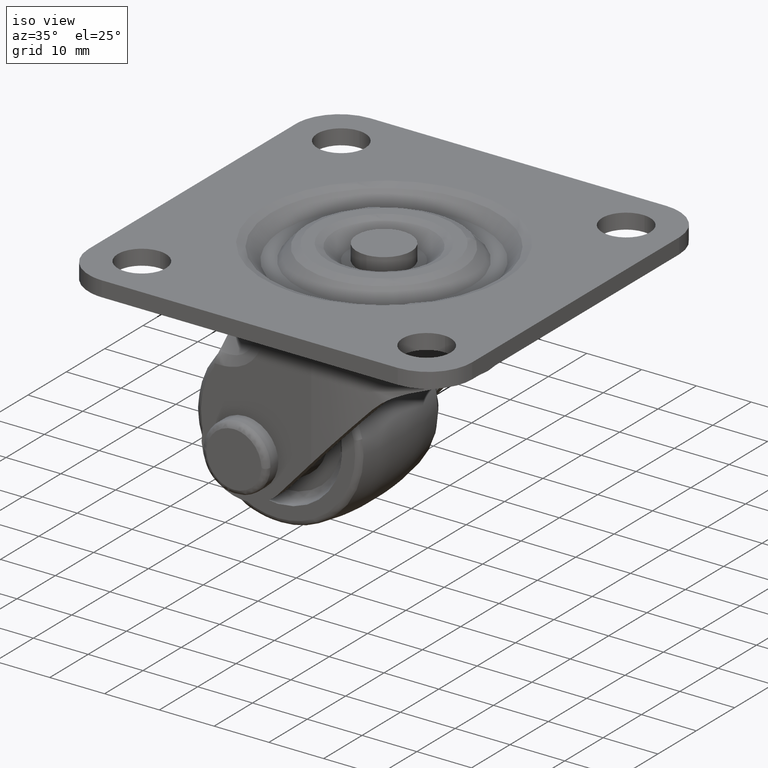
[diagram: clean part render]
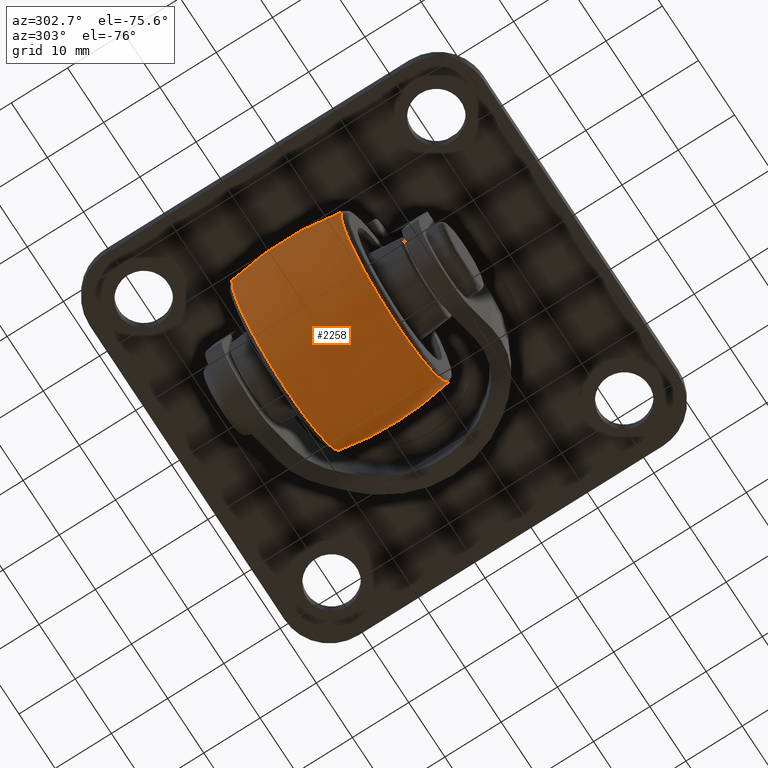
[diagram: tour spotlight — one face highlighted and labeled with its STEP entity id]
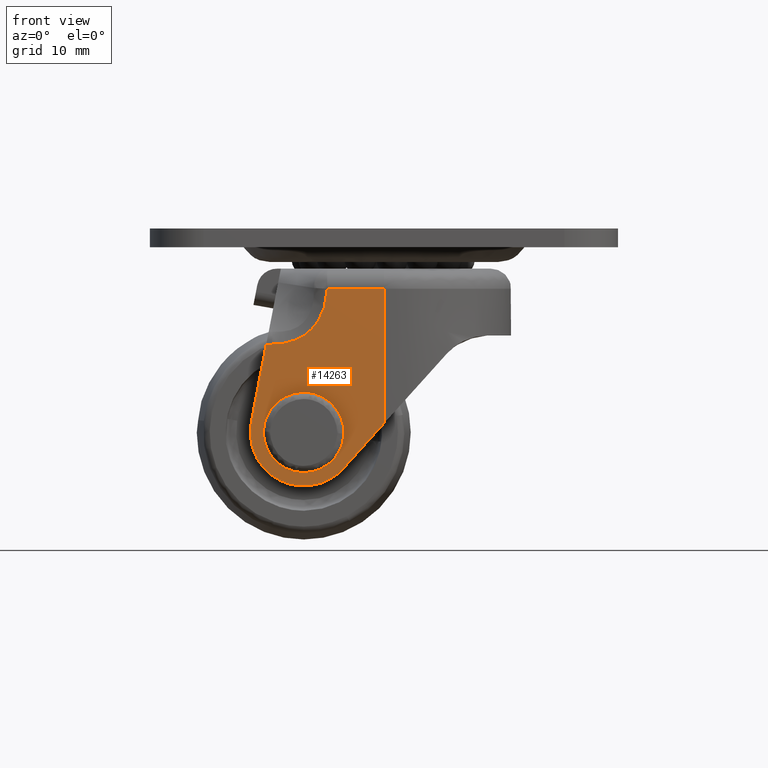
[diagram: tour spotlight — one face highlighted and labeled with its STEP entity id]
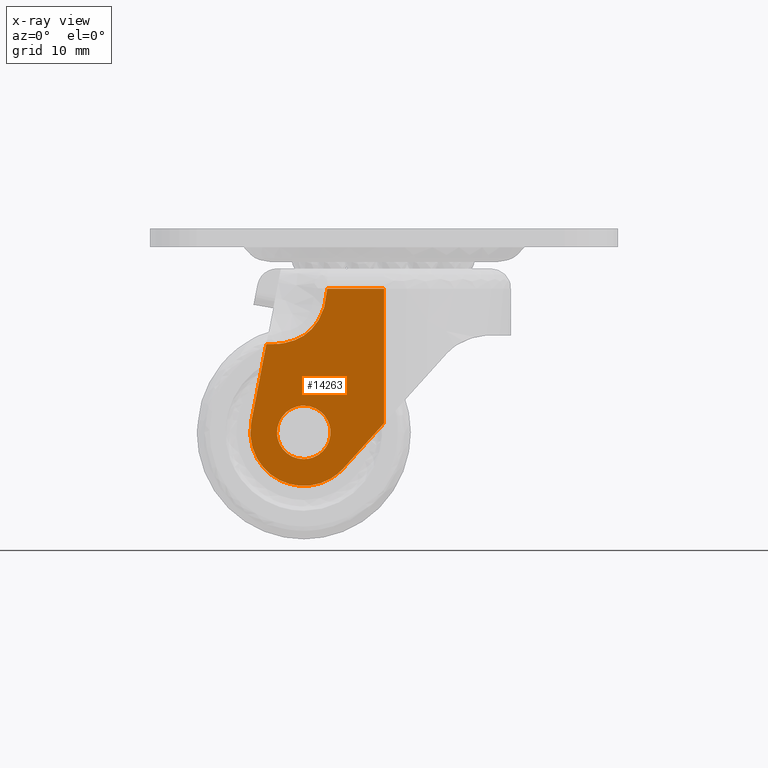
[diagram: x-ray of the same camera — body ghosted, this tour face saturated]
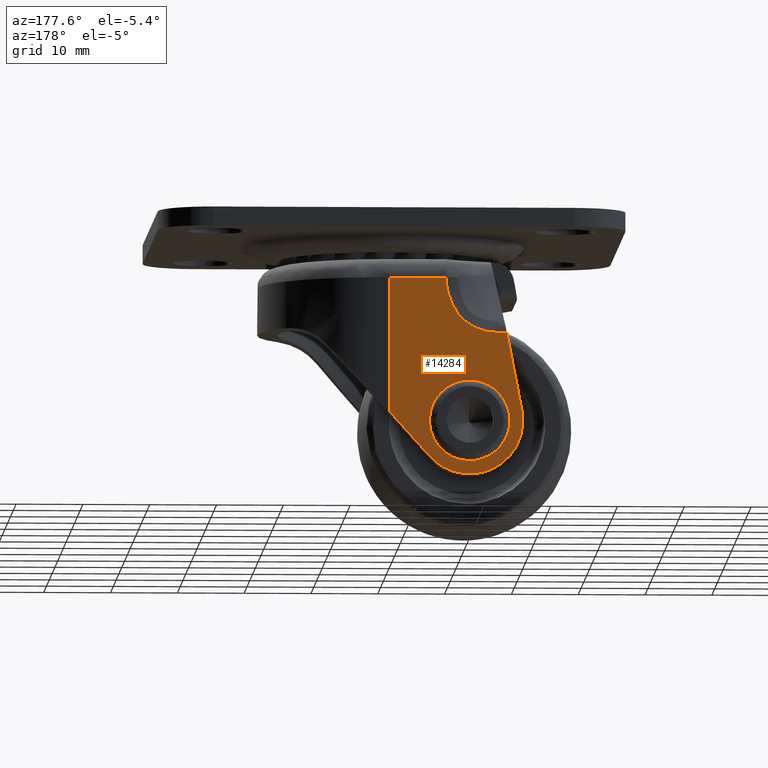
[diagram: tour spotlight — one face highlighted and labeled with its STEP entity id]
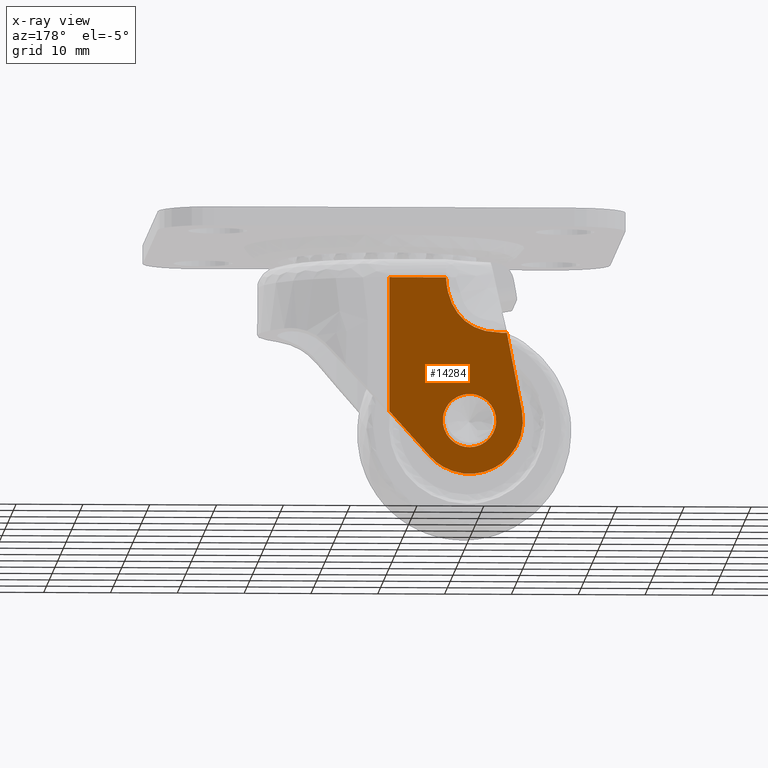
[diagram: x-ray of the same camera — body ghosted, this tour face saturated]
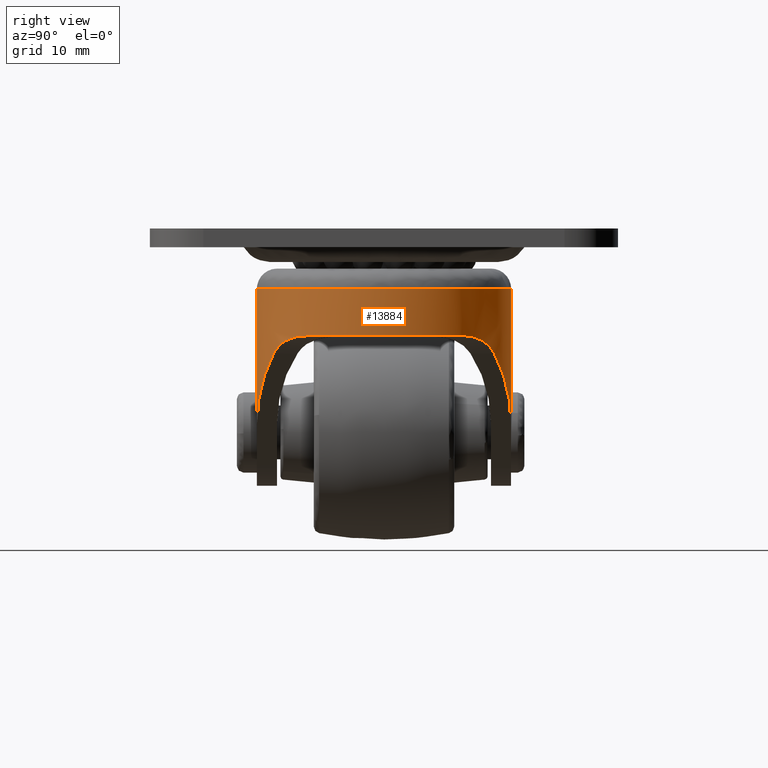
[diagram: tour spotlight — one face highlighted and labeled with its STEP entity id]
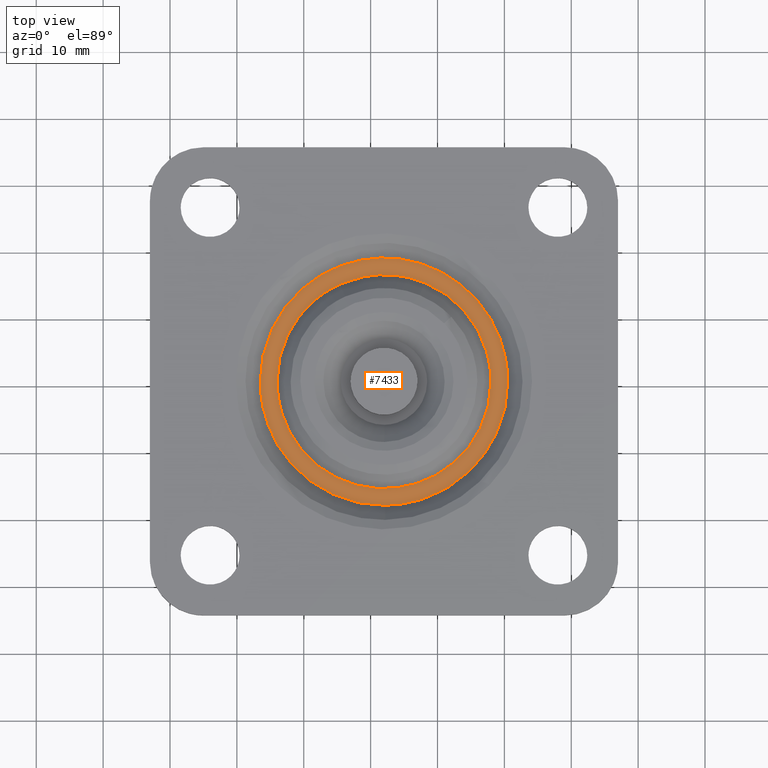
[diagram: tour spotlight — one face highlighted and labeled with its STEP entity id]
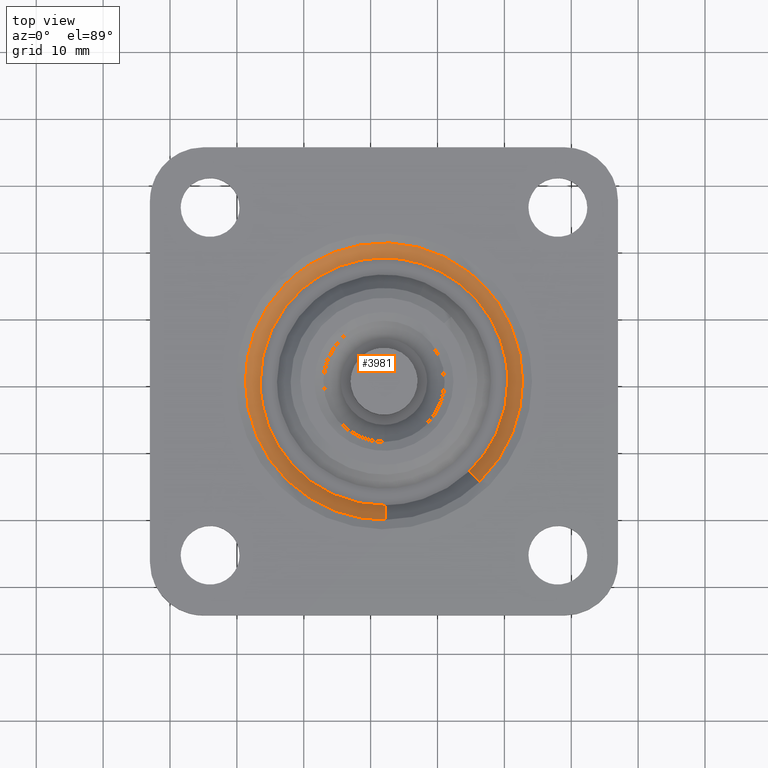
[diagram: tour spotlight — one face highlighted and labeled with its STEP entity id]
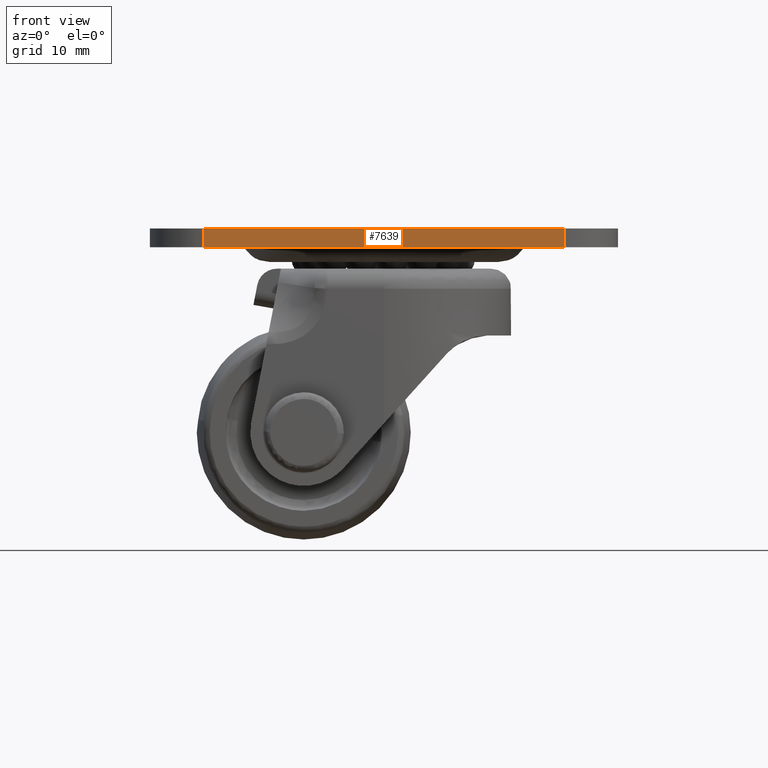
[diagram: tour spotlight — one face highlighted and labeled with its STEP entity id]
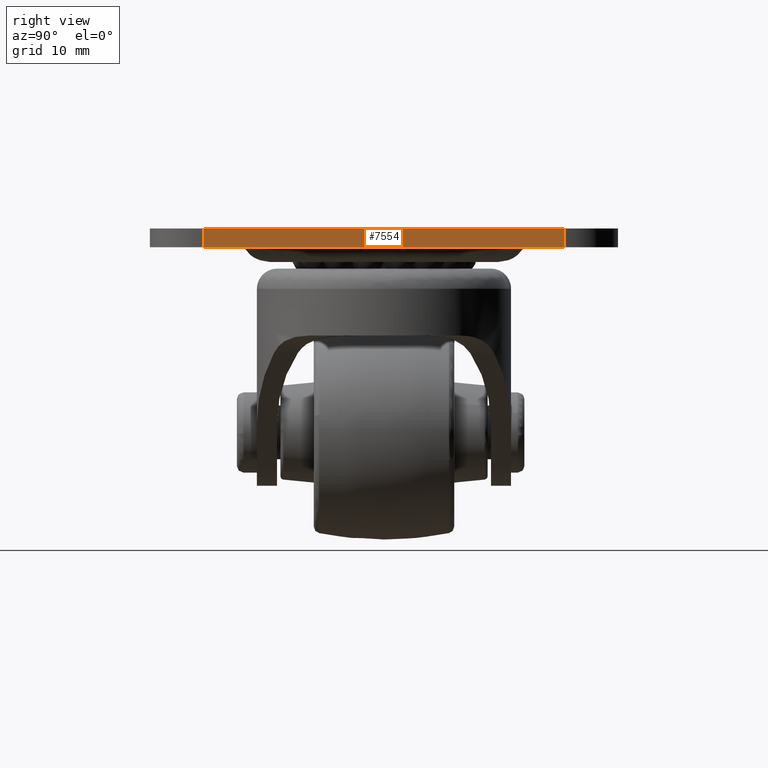
[diagram: tour spotlight — one face highlighted and labeled with its STEP entity id]
A machine part: a face-by-face anatomy tour. The part has 199 B-rep faces; the first image is the clean iso view, then the 8 largest visible faces are spotlighted one at a time (largest first), each with its STEP entity span.

Face 1 — auxiliary view, entity #2258. In plain terms, the highlighted face is a freeform B-spline surface patch.
Definition (entity closure, byte-faithful):
#1786=CARTESIAN_POINT('',(0.0,9.693867653095591,15.051280769248560));
#1787=VERTEX_POINT('',#1786);
#1801=CARTESIAN_POINT('',(14.502563924880180,9.693872522452987,-4.027009509901783));
#1802=VERTEX_POINT('',#1801);
#1803=CARTESIAN_POINT('',(14.502563924880178,9.693872522452988,-4.027009509901782));
#1804=CARTESIAN_POINT('',(15.051283271490156,9.693871958786103,-2.050890597470015));
#1805=CARTESIAN_POINT('',(15.051283271490149,9.693871442448966,-0.000003251120790));
#1806=CARTESIAN_POINT('',(15.051283271490151,9.693867653095591,15.051280769248557));
#1807=CARTESIAN_POINT('',(0.0,9.693867653095591,15.051280769248560));
#1815=(BOUNDED_CURVE()B_SPLINE_CURVE(2,(#1803,#1804,#1805,#1806,#1807),.UNSPECIFIED.,.F.,.U.)B_SPLINE_CURVE_WITH_KNOTS((3,2,3),(0.204398605127965,0.250000000000000,0.500000000000000),.UNSPECIFIED.)CURVE()GEOMETRIC_REPRESENTATION_ITEM()RATIONAL_B_SPLINE_CURVE((0.912639451905827,0.946574642694185,1.0,0.707106781186548,1.0))REPRESENTATION_ITEM(''));
#1816=EDGE_CURVE('',#1802,#1787,#1815,.T.);
#1873=CARTESIAN_POINT('',(0.0,9.693875231802339,-15.051287271490139));
#1874=VERTEX_POINT('',#1873);
#1875=CARTESIAN_POINT('',(0.0,9.693875231802339,-15.051287271490139));
#1876=CARTESIAN_POINT('',(11.441392369813409,9.693875231802339,-15.051287271490137));
#1877=CARTESIAN_POINT('',(14.502563924880178,9.693872522452988,-4.027009509901782));
#1885=(BOUNDED_CURVE()B_SPLINE_CURVE(2,(#1875,#1876,#1877),.UNSPECIFIED.,.F.,.U.)B_SPLINE_CURVE_WITH_KNOTS((3,3),(0.0,0.204398605127965),.UNSPECIFIED.)CURVE()GEOMETRIC_REPRESENTATION_ITEM()RATIONAL_B_SPLINE_CURVE((1.0,0.760532138492362,0.912639451905827))REPRESENTATION_ITEM(''));
#1886=EDGE_CURVE('',#1874,#1802,#1885,.T.);
#1888=CARTESIAN_POINT('',(-14.950616506431530,9.693877446149049,1.737862802311950));
#1889=VERTEX_POINT('',#1888);
#1890=CARTESIAN_POINT('',(-14.950616506431532,9.693877446149049,1.737862802311951));
#1891=CARTESIAN_POINT('',(-15.051282848002003,9.693877389038839,0.871844937167030));
#1892=CARTESIAN_POINT('',(-15.051282860592030,9.693877324905573,-0.000004047762983));
#1893=CARTESIAN_POINT('',(-15.051283077941774,9.693876217732218,-15.051287293988302));
#1894=CARTESIAN_POINT('',(0.0,9.693875231802339,-15.051287271490139));
#1902=(BOUNDED_CURVE()B_SPLINE_CURVE(2,(#1890,#1891,#1892,#1893,#1894),.UNSPECIFIED.,.F.,.U.)B_SPLINE_CURVE_WITH_KNOTS((3,2,3),(0.730000203322789,0.750000000000000,1.0),.UNSPECIFIED.)CURVE()GEOMETRIC_REPRESENTATION_ITEM()RATIONAL_B_SPLINE_CURVE((0.956886518379587,0.976568780702388,1.0,0.707106781186548,1.0))REPRESENTATION_ITEM(''));
#1903=EDGE_CURVE('',#1889,#1874,#1902,.T.);
#1954=CARTESIAN_POINT('',(6.872037539226013,-9.693875879863526,-13.390904757967110));
#1955=VERTEX_POINT('',#1954);
#1956=CARTESIAN_POINT('',(14.818956787238619,-9.693873825022653,2.634317655565042));
#1957=VERTEX_POINT('',#1956);
#1958=CARTESIAN_POINT('',(6.872037539226013,-9.693875879863526,-13.390904757967112));
#1959=CARTESIAN_POINT('',(15.051283102300051,-9.693875326557789,-9.193421301395031));
#1960=CARTESIAN_POINT('',(15.051283102300051,-9.693874131682570,-0.000003613396480));
#1961=CARTESIAN_POINT('',(15.051283102300054,-9.693873959158733,1.327401693998329));
#1962=CARTESIAN_POINT('',(14.818956787238617,-9.693873825022653,2.634317655565042));
#1970=(BOUNDED_CURVE()B_SPLINE_CURVE(2,(#1958,#1959,#1960,#1961,#1962),.UNSPECIFIED.,.F.,.U.)B_SPLINE_CURVE_WITH_KNOTS((3,2,3),(0.077652127012979,0.250000000000000,0.280081741862902),.UNSPECIFIED.)CURVE()GEOMETRIC_REPRESENTATION_ITEM()RATIONAL_B_SPLINE_CURVE((0.874565044707488,0.798081906900717,1.0,0.964757047193037,0.937995449656678))REPRESENTATION_ITEM(''));
#1971=EDGE_CURVE('',#1955,#1957,#1970,.T.);
#2056=CARTESIAN_POINT('',(0.0,-9.693876087908890,-15.051287102300041));
#2057=VERTEX_POINT('',#2056);
#2058=CARTESIAN_POINT('',(0.0,-9.693876087908890,-15.051287102300041));
#2059=CARTESIAN_POINT('',(3.636604794646877,-9.693876087908890,-15.051287102300037));
#2060=CARTESIAN_POINT('',(6.872037539226013,-9.693875879863526,-13.390904757967112));
#2068=(BOUNDED_CURVE()B_SPLINE_CURVE(2,(#2058,#2059,#2060),.UNSPECIFIED.,.F.,.U.)B_SPLINE_CURVE_WITH_KNOTS((3,3),(0.0,0.077652127012979),.UNSPECIFIED.)CURVE()GEOMETRIC_REPRESENTATION_ITEM()RATIONAL_B_SPLINE_CURVE((1.0,0.909024874285830,0.874565044707488))REPRESENTATION_ITEM(''));
#2069=EDGE_CURVE('',#2057,#1955,#2068,.T.);
#2118=CARTESIAN_POINT('',(0.0,-9.693872175456249,15.051279875507079));
#2119=VERTEX_POINT('',#2118);
#2120=CARTESIAN_POINT('',(14.818956787238617,-9.693873825022653,2.634317655565042));
#2121=CARTESIAN_POINT('',(12.611630780728344,-9.693872175456249,15.051279875507076));
#2122=CARTESIAN_POINT('',(0.0,-9.693872175456249,15.051279875507079));
#2130=(BOUNDED_CURVE()B_SPLINE_CURVE(2,(#2120,#2121,#2122),.UNSPECIFIED.,.F.,.U.)B_SPLINE_CURVE_WITH_KNOTS((3,3),(0.280081741862902,0.500000000000000),.UNSPECIFIED.)CURVE()GEOMETRIC_REPRESENTATION_ITEM()RATIONAL_B_SPLINE_CURVE((0.937995449656678,0.742349733993511,1.0))REPRESENTATION_ITEM(''));
#2131=EDGE_CURVE('',#1957,#2119,#2130,.T.);
#2133=CARTESIAN_POINT('',(-14.950616383888519,-9.693878072483713,1.737862784492540));
#2134=VERTEX_POINT('',#2133);
#2148=CARTESIAN_POINT('',(-14.950616383888519,-9.693878072483713,1.737862784492539));
#2149=CARTESIAN_POINT('',(-15.051282722754074,-9.693878021299549,0.871844930693038));
#2150=CARTESIAN_POINT('',(-15.051282734037740,-9.693877963821075,-0.000004042806975));
#2151=CARTESIAN_POINT('',(-15.051282928834732,-9.693876971533664,-15.051287122463727));
#2152=CARTESIAN_POINT('',(0.0,-9.693876087908890,-15.051287102300041));
#2160=(BOUNDED_CURVE()B_SPLINE_CURVE(2,(#2148,#2149,#2150,#2151,#2152),.UNSPECIFIED.,.F.,.U.)B_SPLINE_CURVE_WITH_KNOTS((3,2,3),(0.730000203362697,0.750000000000000,1.0),.UNSPECIFIED.)CURVE()GEOMETRIC_REPRESENTATION_ITEM()RATIONAL_B_SPLINE_CURVE((0.956886518458137,0.976568780749144,1.0,0.707106781186548,1.0))REPRESENTATION_ITEM(''));
#2161=EDGE_CURVE('',#2134,#2057,#2160,.T.);
#2166=CARTESIAN_POINT('',(-14.750584837888283,-10.662375928575592,1.714628626504489));
#2167=CARTESIAN_POINT('',(-15.892982292882774,-5.393214770068871,1.847422815365253));
#2168=CARTESIAN_POINT('',(-15.892982292882781,0.0,1.847422815365253));
#2169=CARTESIAN_POINT('',(-15.892982292882779,5.393213523697779,1.847422815365252));
#2170=CARTESIAN_POINT('',(-14.750585359831321,10.662373521180273,1.714628687176020));
#2171=CARTESIAN_POINT('',(-14.849906333159591,-10.662375928575594,0.860188952618152));
#2172=CARTESIAN_POINT('',(-15.999996000000010,-5.393214770068870,0.926808835875327));
#2173=CARTESIAN_POINT('',(-15.999995999999999,0.0,0.926808835875327));
#2174=CARTESIAN_POINT('',(-15.999995999999999,5.393213523697778,0.926808835875327));
#2175=CARTESIAN_POINT('',(-14.849906858617079,10.662373521180266,0.860188983055705));
#2176=CARTESIAN_POINT('',(-14.849906333159584,-10.662375928575599,-0.000003999999991));
#2177=CARTESIAN_POINT('',(-15.999996000000001,-5.393214770068871,-0.000003999999991));
#2178=CARTESIAN_POINT('',(-15.999995999999999,0.0,-0.000003999999991));
#2179=CARTESIAN_POINT('',(-15.999996000000003,5.393213523697779,-0.000003999999991));
#2180=CARTESIAN_POINT('',(-14.849906858617071,10.662373521180273,-0.000003999999991));
#2181=CARTESIAN_POINT('',(-14.849906333159593,-10.662375928575594,-14.849910333159572));
#2182=CARTESIAN_POINT('',(-15.999996000000001,-5.393214770068869,-15.999999999999989));
#2183=CARTESIAN_POINT('',(-15.999996000000005,0.0,-15.999999999999986));
#2184=CARTESIAN_POINT('',(-15.999995999999999,5.393213523697778,-15.999999999999998));
#2185=CARTESIAN_POINT('',(-14.849906858617075,10.662373521180269,-14.849910858617063));
#2186=CARTESIAN_POINT('',(0.0,-10.662375928575599,-14.849910333159579));
#2187=CARTESIAN_POINT('',(0.0,-5.393214770068871,-15.999999999999995));
#2188=CARTESIAN_POINT('',(0.0,0.0,-15.999999999999989));
#2189=CARTESIAN_POINT('',(0.0,5.393213523697779,-15.999999999999996));
#2190=CARTESIAN_POINT('',(0.0,10.662373521180273,-14.849910858617068));
#2191=CARTESIAN_POINT('',(14.849906333159593,-10.662375928575594,-14.849910333159572));
#2192=CARTESIAN_POINT('',(15.999996000000001,-5.393214770068869,-15.999999999999989));
#2193=CARTESIAN_POINT('',(15.999996000000005,0.0,-15.999999999999986));
#2194=CARTESIAN_POINT('',(15.999995999999999,5.393213523697778,-15.999999999999998));
#2195=CARTESIAN_POINT('',(14.849906858617075,10.662373521180269,-14.849910858617063));
#2196=CARTESIAN_POINT('',(14.849906333159584,-10.662375928575599,-0.000003999999991));
#2197=CARTESIAN_POINT('',(15.999996000000001,-5.393214770068871,-0.000003999999991));
#2198=CARTESIAN_POINT('',(15.999995999999999,0.0,-0.000003999999991));
#2199=CARTESIAN_POINT('',(15.999996000000003,5.393213523697779,-0.000003999999991));
#2200=CARTESIAN_POINT('',(14.849906858617071,10.662373521180273,-0.000003999999991));
#2201=CARTESIAN_POINT('',(14.849906333159593,-10.662375928575594,14.849902333159601));
#2202=CARTESIAN_POINT('',(15.999996000000001,-5.393214770068869,15.999992000000015));
#2203=CARTESIAN_POINT('',(15.999996000000005,0.0,15.999992000000011));
#2204=CARTESIAN_POINT('',(15.999995999999999,5.393213523697778,15.999992000000017));
#2205=CARTESIAN_POINT('',(14.849906858617075,10.662373521180269,14.849902858617089));
#2206=CARTESIAN_POINT('',(0.0,-10.662375928575599,14.849902333159591));
#2207=CARTESIAN_POINT('',(0.0,-5.393214770068871,15.999992000000008));
#2208=CARTESIAN_POINT('',(0.0,0.0,15.999992000000010));
#2209=CARTESIAN_POINT('',(0.0,5.393213523697779,15.999992000000011));
#2210=CARTESIAN_POINT('',(0.0,10.662373521180273,14.849902858617074));
#2218=(BOUNDED_SURFACE()B_SPLINE_SURFACE(2,2,((#2166,#2171,#2176,#2181,#2186,#2191,#2196,#2201,#2206),(#2167,#2172,#2177,#2182,#2187,#2192,#2197,#2202,#2207),(#2168,#2173,#2178,#2183,#2188,#2193,#2198,#2203,#2208),(#2169,#2174,#2179,#2184,#2189,#2194,#2199,#2204,#2209),(#2170,#2175,#2180,#2185,#2190,#2195,#2200,#2205,#2210)),.UNSPECIFIED.,.F.,.F.,.U.)B_SPLINE_SURFACE_WITH_KNOTS((3,2,3),(3,2,2,2,3),(0.0,10.902413585797440,21.804824707521441),(0.0,2.120772466729182,28.630433831190270,55.140095195651362,81.649756560112451),.UNSPECIFIED.)GEOMETRIC_REPRESENTATION_ITEM()RATIONAL_B_SPLINE_SURFACE(((0.925862838830769,0.944907134344163,0.967578913816356,0.684181611292660,0.967578913816356,0.684181611292660,0.967578913816356,0.684181611292660,0.967578913816356),(0.935818433253739,0.955067507784339,0.977983071791137,0.691538461949163,0.977983071791137,0.691538461949163,0.977983071791137,0.691538461949163,0.977983071791137),(0.956886126402807,0.976568547383107,1.0,0.707106781186548,1.0,0.707106781186548,1.0,0.707106781186548,1.0),(0.935818438015285,0.955067512643826,0.977983076767221,0.691538465467786,0.977983076767221,0.691538465467786,0.977983076767221,0.691538465467786,0.977983076767221),(0.925862843330932,0.944907138936891,0.967578918519280,0.684181614618129,0.967578918519280,0.684181614618129,0.967578918519280,0.684181614618129,0.967578918519280)))REPRESENTATION_ITEM('')SURFACE());
#2219=ORIENTED_EDGE('',*,*,#1903,.T.);
#2220=ORIENTED_EDGE('',*,*,#1886,.T.);
#2221=ORIENTED_EDGE('',*,*,#1816,.T.);
#2222=CARTESIAN_POINT('',(0.0,-9.693872175456249,15.051279875507072));
#2223=CARTESIAN_POINT('',(0.0,-4.893359987222009,15.999992000000017));
#2224=CARTESIAN_POINT('',(0.0,0.0,15.999992000000010));
#2225=CARTESIAN_POINT('',(0.0,4.893357660231275,15.999992000000017));
#2226=CARTESIAN_POINT('',(0.0,9.693867653095591,15.051280769248564));
#2234=(BOUNDED_CURVE()B_SPLINE_CURVE(2,(#2222,#2223,#2224,#2225,#2226),.UNSPECIFIED.,.F.,.U.)B_SPLINE_CURVE_WITH_KNOTS((3,2,3),(0.380114769278350,0.500000000000000,0.619885174852556),.UNSPECIFIED.)CURVE()GEOMETRIC_REPRESENTATION_ITEM()RATIONAL_B_SPLINE_CURVE((0.969564668970930,0.979982801584603,1.0,0.979982810913048,0.969564678681079))REPRESENTATION_ITEM(''));
#2235=EDGE_CURVE('',#2119,#1787,#2234,.T.);
#2236=ORIENTED_EDGE('',*,*,#2235,.F.);
#2237=ORIENTED_EDGE('',*,*,#2131,.F.);
#2238=ORIENTED_EDGE('',*,*,#1971,.F.);
#2239=ORIENTED_EDGE('',*,*,#2069,.F.);
#2240=ORIENTED_EDGE('',*,*,#2161,.F.);
#2241=CARTESIAN_POINT('',(-14.950616383888519,-9.693878072483713,1.737862784492540));
#2242=CARTESIAN_POINT('',(-15.892984336521785,-4.893363021550707,1.847405234237354));
#2243=CARTESIAN_POINT('',(-15.892984336418303,8.880420E-016,1.847405235127585));
#2244=CARTESIAN_POINT('',(-15.892984336314825,4.893362699268796,1.847405236017818));
#2245=CARTESIAN_POINT('',(-14.950616506431532,9.693877446149049,1.737862802311950));
#2253=(BOUNDED_CURVE()B_SPLINE_CURVE(2,(#2241,#2242,#2243,#2244,#2245),.UNSPECIFIED.,.F.,.U.)B_SPLINE_CURVE_WITH_KNOTS((3,2,3),(0.380114696426616,0.500000000000000,0.619885295835666),.UNSPECIFIED.)CURVE()GEOMETRIC_REPRESENTATION_ITEM()RATIONAL_B_SPLINE_CURVE((0.927762960310546,0.937731927262306,0.956886118190660,0.937731928498569,0.927762961597393))REPRESENTATION_ITEM(''));
#2254=EDGE_CURVE('',#2134,#1889,#2253,.T.);
#2255=ORIENTED_EDGE('',*,*,#2254,.T.);
#2256=EDGE_LOOP('',(#2219,#2220,#2221,#2236,#2237,#2238,#2239,#2240,#2255));
#2257=FACE_OUTER_BOUND('',#2256,.T.);
#2258=ADVANCED_FACE('',(#2257),#2218,.T.);

Face 2 — front view, entity #14263. An x-ray twin of the same camera follows (body ghosted, this face saturated) — the face is partly hidden behind the body. In plain terms, the highlighted face is a freeform B-spline surface patch.
Definition (entity closure, byte-faithful):
#11314=CARTESIAN_POINT('',(-3.992539193682481,-19.0,-0.244194158220941));
#11315=VERTEX_POINT('',#11314);
#11321=CARTESIAN_POINT('',(0.0,-19.0,-4.0));
#11322=VERTEX_POINT('',#11321);
#11323=CARTESIAN_POINT('',(0.0,-19.0,-4.0));
#11324=CARTESIAN_POINT('',(-3.762824267468871,-19.000000000000004,-4.0));
#11325=CARTESIAN_POINT('',(-3.992539193682481,-19.0,-0.244194158220941));
#11333=(BOUNDED_CURVE()B_SPLINE_CURVE(2,(#11323,#11324,#11325),.UNSPECIFIED.,.F.,.U.)B_SPLINE_CURVE_WITH_KNOTS((3,3),(0.500000000000000,0.739332962234924),.UNSPECIFIED.)CURVE()GEOMETRIC_REPRESENTATION_ITEM()RATIONAL_B_SPLINE_CURVE((1.0,0.719603993291419,0.976072041658104))REPRESENTATION_ITEM(''));
#11334=EDGE_CURVE('',#11322,#11315,#11333,.T.);
#11336=CARTESIAN_POINT('',(3.972038105444410,-19.0,0.472136938713309));
#11337=VERTEX_POINT('',#11336);
#11338=CARTESIAN_POINT('',(3.972038105444411,-19.000000000000004,0.472136938713309));
#11339=CARTESIAN_POINT('',(4.0,-18.999999999999996,0.236896478694827));
#11340=CARTESIAN_POINT('',(4.0,-19.0,0.0));
#11341=CARTESIAN_POINT('',(4.000000000000000,-18.999999999999993,-4.000000000000000));
#11342=CARTESIAN_POINT('',(0.0,-19.0,-4.0));
#11350=(BOUNDED_CURVE()B_SPLINE_CURVE(2,(#11338,#11339,#11340,#11341,#11342),.UNSPECIFIED.,.F.,.U.)B_SPLINE_CURVE_WITH_KNOTS((3,2,3),(0.229562473508303,0.250000000000000,0.500000000000000),.UNSPECIFIED.)CURVE()GEOMETRIC_REPRESENTATION_ITEM()RATIONAL_B_SPLINE_CURVE((0.956026754173496,0.976055948325046,1.0,0.707106781186548,1.0))REPRESENTATION_ITEM(''));
#11351=EDGE_CURVE('',#11337,#11322,#11350,.T.);
#11395=CARTESIAN_POINT('',(0.0,-19.0,4.0));
#11396=VERTEX_POINT('',#11395);
#11397=CARTESIAN_POINT('',(0.0,-19.0,4.0));
#11398=CARTESIAN_POINT('',(3.552698103650049,-18.999999999999996,4.000000000000001));
#11399=CARTESIAN_POINT('',(3.972038105444411,-18.999999999999996,0.472136938713309));
#11407=(BOUNDED_CURVE()B_SPLINE_CURVE(2,(#11397,#11398,#11399),.UNSPECIFIED.,.F.,.U.)B_SPLINE_CURVE_WITH_KNOTS((3,3),(0.0,0.229562473508302),.UNSPECIFIED.)CURVE()GEOMETRIC_REPRESENTATION_ITEM()RATIONAL_B_SPLINE_CURVE((1.0,0.731050832861502,0.956026754173495))REPRESENTATION_ITEM(''));
#11408=EDGE_CURVE('',#11396,#11337,#11407,.T.);
#11410=CARTESIAN_POINT('',(-3.992539193682482,-18.999999999999996,-0.244194158220941));
#11411=CARTESIAN_POINT('',(-4.0,-18.999999999999996,-0.122211053276097));
#11412=CARTESIAN_POINT('',(-4.0,-19.0,0.0));
#11413=CARTESIAN_POINT('',(-4.000000000000000,-18.999999999999993,4.000000000000000));
#11414=CARTESIAN_POINT('',(0.0,-19.0,4.0));
#11422=(BOUNDED_CURVE()B_SPLINE_CURVE(2,(#11410,#11411,#11412,#11413,#11414),.UNSPECIFIED.,.F.,.U.)B_SPLINE_CURVE_WITH_KNOTS((3,2,3),(0.739332962234923,0.750000000000000,1.0),.UNSPECIFIED.)CURVE()GEOMETRIC_REPRESENTATION_ITEM()RATIONAL_B_SPLINE_CURVE((0.976072041658102,0.987502787895127,1.0,0.707106781186548,1.0))REPRESENTATION_ITEM(''));
#11423=EDGE_CURVE('',#11315,#11396,#11422,.T.);
#12509=CARTESIAN_POINT('',(3.516151752933165,-19.0,21.500000000000000));
#12510=VERTEX_POINT('',#12509);
#12618=CARTESIAN_POINT('',(-4.729063644583930,-19.0,13.209993890227500));
#12619=VERTEX_POINT('',#12618);
#12620=CARTESIAN_POINT('',(3.516151752933143,-19.0,21.500000000000028));
#12621=CARTESIAN_POINT('',(3.092749686983165,-19.0,13.209993890227665));
#12622=CARTESIAN_POINT('',(-4.729063644583930,-19.0,13.209993890227500));
#12630=(BOUNDED_CURVE()B_SPLINE_CURVE(2,(#12620,#12621,#12622),.UNSPECIFIED.,.F.,.U.)CURVE()GEOMETRIC_REPRESENTATION_ITEM()QUASI_UNIFORM_CURVE()RATIONAL_B_SPLINE_CURVE((1.0,0.893733057298437,1.0))REPRESENTATION_ITEM(''));
#12631=EDGE_CURVE('',#12510,#12619,#12630,.T.);
#12679=CARTESIAN_POINT('',(-5.599198789073601,-19.0,13.209993890227500));
#12680=VERTEX_POINT('',#12679);
#12696=CARTESIAN_POINT('',(-4.729063644583930,-19.0,13.209993890227500));
#12697=CARTESIAN_POINT('',(-5.599198789073601,-19.0,13.209993890227500));
#12698=QUASI_UNIFORM_CURVE('',1,(#12696,#12697),.UNSPECIFIED.,.F.,.U.);
#12699=EDGE_CURVE('',#12619,#12680,#12698,.T.);
#12952=CARTESIAN_POINT('',(12.0,-19.0,21.500000000000000));
#12953=VERTEX_POINT('',#12952);
#13021=CARTESIAN_POINT('',(12.0,-19.0,21.500000000000000));
#13022=CARTESIAN_POINT('',(3.516151752933165,-19.0,21.500000000000000));
#13023=QUASI_UNIFORM_CURVE('',1,(#13021,#13022),.UNSPECIFIED.,.F.,.U.);
#13024=EDGE_CURVE('',#12953,#12510,#13023,.T.);
#13778=CARTESIAN_POINT('',(12.0,-19.0,1.364444756158786));
#13779=VERTEX_POINT('',#13778);
#13780=CARTESIAN_POINT('',(12.0,-19.0,1.364444756158786));
#13781=CARTESIAN_POINT('',(12.0,-19.0,21.500000000000000));
#13782=QUASI_UNIFORM_CURVE('',1,(#13780,#13781),.UNSPECIFIED.,.F.,.U.);
#13783=EDGE_CURVE('',#13779,#12953,#13782,.T.);
#13989=CARTESIAN_POINT('',(5.942348000000000,-19.0,-5.356164000000000));
#13990=VERTEX_POINT('',#13989);
#13991=CARTESIAN_POINT('',(5.942348000000000,-19.0,-5.356164000000000));
#13992=CARTESIAN_POINT('',(12.0,-19.0,1.364444756158786));
#13993=QUASI_UNIFORM_CURVE('',1,(#13991,#13992),.UNSPECIFIED.,.F.,.U.);
#13994=EDGE_CURVE('',#13990,#13779,#13993,.T.);
#14040=CARTESIAN_POINT('',(-7.855179000000001,-19.0,1.515316999999810));
#14041=VERTEX_POINT('',#14040);
#14042=CARTESIAN_POINT('',(-7.855179000000001,-19.0,1.515316999999810));
#14043=CARTESIAN_POINT('',(-9.006289975077394,-19.0,-4.451872454477909));
#14044=CARTESIAN_POINT('',(-3.566377445352765,-19.0,-7.161072124075488));
#14045=CARTESIAN_POINT('',(1.873535084371859,-19.0,-9.870271793673066));
#14046=CARTESIAN_POINT('',(5.942348000000000,-19.0,-5.356164000000000));
#14054=(BOUNDED_CURVE()B_SPLINE_CURVE(2,(#14042,#14043,#14044,#14045,#14046),.UNSPECIFIED.,.F.,.U.)B_SPLINE_CURVE_WITH_KNOTS((3,2,3),(0.0,0.500000000000000,1.0),.UNSPECIFIED.)CURVE()GEOMETRIC_REPRESENTATION_ITEM()RATIONAL_B_SPLINE_CURVE((1.0,0.796296253369374,1.0,0.796296253369374,1.0))REPRESENTATION_ITEM(''));
#14055=EDGE_CURVE('',#14041,#13990,#14054,.T.);
#14174=CARTESIAN_POINT('',(-5.599198789073601,-19.0,13.209993890227500));
#14175=CARTESIAN_POINT('',(-7.855179000000001,-19.0,1.515316999999810));
#14176=QUASI_UNIFORM_CURVE('',1,(#14174,#14175),.UNSPECIFIED.,.F.,.U.);
#14177=EDGE_CURVE('',#12680,#14041,#14176,.T.);
#14243=CARTESIAN_POINT('',(-8.997739861322216,-19.0,22.973357275781112));
#14244=CARTESIAN_POINT('',(12.998940549703031,-19.0,22.973357275781112));
#14245=CARTESIAN_POINT('',(-8.997739861322216,-19.0,-9.470001368619533));
#14246=CARTESIAN_POINT('',(12.998940549703031,-19.0,-9.470001368619533));
#14247=B_SPLINE_SURFACE_WITH_KNOTS('',1,1,((#14243,#14245),(#14244,#14246)),.UNSPECIFIED.,.F.,.F.,.U.,(2,2),(2,2),(0.0,21.996680411025249),(0.0,32.443358644400639),.UNSPECIFIED.);
#14248=ORIENTED_EDGE('',*,*,#13024,.T.);
#14249=ORIENTED_EDGE('',*,*,#12631,.T.);
#14250=ORIENTED_EDGE('',*,*,#12699,.T.);
#14251=ORIENTED_EDGE('',*,*,#14177,.T.);
#14252=ORIENTED_EDGE('',*,*,#14055,.T.);
#14253=ORIENTED_EDGE('',*,*,#13994,.T.);
#14254=ORIENTED_EDGE('',*,*,#13783,.T.);
#14255=EDGE_LOOP('',(#14248,#14249,#14250,#14251,#14252,#14253,#14254));
#14256=FACE_OUTER_BOUND('',#14255,.T.);
#14257=ORIENTED_EDGE('',*,*,#11334,.T.);
#14258=ORIENTED_EDGE('',*,*,#11423,.T.);
#14259=ORIENTED_EDGE('',*,*,#11408,.T.);
#14260=ORIENTED_EDGE('',*,*,#11351,.T.);
#14261=EDGE_LOOP('',(#14257,#14258,#14259,#14260));
#14262=FACE_BOUND('',#14261,.T.);
#14263=ADVANCED_FACE('',(#14256,#14262),#14247,.F.);

Face 3 — auxiliary view, entity #14284. An x-ray twin of the same camera follows (body ghosted, this face saturated) — the face is partly hidden behind the body. In plain terms, the highlighted face is a freeform B-spline surface patch.
Definition (entity closure, byte-faithful):
#11113=CARTESIAN_POINT('',(3.972038105444410,19.0,0.472136938713309));
#11114=VERTEX_POINT('',#11113);
#11120=CARTESIAN_POINT('',(0.0,19.0,-4.0));
#11121=VERTEX_POINT('',#11120);
#11122=CARTESIAN_POINT('',(3.972038105444411,19.000000000000004,0.472136938713309));
#11123=CARTESIAN_POINT('',(4.0,18.999999999999996,0.236896478694827));
#11124=CARTESIAN_POINT('',(4.0,19.0,0.0));
#11125=CARTESIAN_POINT('',(4.000000000000000,18.999999999999993,-4.000000000000000));
#11126=CARTESIAN_POINT('',(0.0,19.0,-4.0));
#11134=(BOUNDED_CURVE()B_SPLINE_CURVE(2,(#11122,#11123,#11124,#11125,#11126),.UNSPECIFIED.,.F.,.U.)B_SPLINE_CURVE_WITH_KNOTS((3,2,3),(0.229562473508303,0.250000000000000,0.500000000000000),.UNSPECIFIED.)CURVE()GEOMETRIC_REPRESENTATION_ITEM()RATIONAL_B_SPLINE_CURVE((0.956026754173496,0.976055948325046,1.0,0.707106781186548,1.0))REPRESENTATION_ITEM(''));
#11135=EDGE_CURVE('',#11114,#11121,#11134,.T.);
#11137=CARTESIAN_POINT('',(-3.992539193682481,19.0,-0.244194158220941));
#11138=VERTEX_POINT('',#11137);
#11139=CARTESIAN_POINT('',(0.0,19.0,-4.0));
#11140=CARTESIAN_POINT('',(-3.762824267468871,19.000000000000004,-4.0));
#11141=CARTESIAN_POINT('',(-3.992539193682481,19.0,-0.244194158220941));
#11149=(BOUNDED_CURVE()B_SPLINE_CURVE(2,(#11139,#11140,#11141),.UNSPECIFIED.,.F.,.U.)B_SPLINE_CURVE_WITH_KNOTS((3,3),(0.500000000000000,0.739332962234924),.UNSPECIFIED.)CURVE()GEOMETRIC_REPRESENTATION_ITEM()RATIONAL_B_SPLINE_CURVE((1.0,0.719603993291419,0.976072041658104))REPRESENTATION_ITEM(''));
#11150=EDGE_CURVE('',#11121,#11138,#11149,.T.);
#11224=CARTESIAN_POINT('',(0.0,19.0,4.0));
#11225=VERTEX_POINT('',#11224);
#11226=CARTESIAN_POINT('',(-3.992539193682482,18.999999999999996,-0.244194158220941));
#11227=CARTESIAN_POINT('',(-4.0,18.999999999999996,-0.122211053276097));
#11228=CARTESIAN_POINT('',(-4.0,19.0,0.0));
#11229=CARTESIAN_POINT('',(-4.000000000000000,18.999999999999993,4.000000000000000));
#11230=CARTESIAN_POINT('',(0.0,19.0,4.0));
#11238=(BOUNDED_CURVE()B_SPLINE_CURVE(2,(#11226,#11227,#11228,#11229,#11230),.UNSPECIFIED.,.F.,.U.)B_SPLINE_CURVE_WITH_KNOTS((3,2,3),(0.739332962234923,0.750000000000000,1.0),.UNSPECIFIED.)CURVE()GEOMETRIC_REPRESENTATION_ITEM()RATIONAL_B_SPLINE_CURVE((0.976072041658102,0.987502787895127,1.0,0.707106781186548,1.0))REPRESENTATION_ITEM(''));
#11239=EDGE_CURVE('',#11138,#11225,#11238,.T.);
#11241=CARTESIAN_POINT('',(0.0,19.0,4.0));
#11242=CARTESIAN_POINT('',(3.552698103650049,18.999999999999996,4.000000000000001));
#11243=CARTESIAN_POINT('',(3.972038105444411,18.999999999999996,0.472136938713309));
#11251=(BOUNDED_CURVE()B_SPLINE_CURVE(2,(#11241,#11242,#11243),.UNSPECIFIED.,.F.,.U.)B_SPLINE_CURVE_WITH_KNOTS((3,3),(0.0,0.229562473508302),.UNSPECIFIED.)CURVE()GEOMETRIC_REPRESENTATION_ITEM()RATIONAL_B_SPLINE_CURVE((1.0,0.731050832861502,0.956026754173495))REPRESENTATION_ITEM(''));
#11252=EDGE_CURVE('',#11225,#11114,#11251,.T.);
#12250=CARTESIAN_POINT('',(3.516151752933420,19.0,21.500000000000000));
#12251=VERTEX_POINT('',#12250);
#12392=CARTESIAN_POINT('',(-4.729063644583711,19.0,13.209993890227221));
#12393=VERTEX_POINT('',#12392);
#12394=CARTESIAN_POINT('',(-4.729063644583711,19.0,13.209993890227221));
#12395=CARTESIAN_POINT('',(3.092749686983555,19.000000000000004,13.209993890227400));
#12396=CARTESIAN_POINT('',(3.516151752933405,19.0,21.500000000000000));
#12404=(BOUNDED_CURVE()B_SPLINE_CURVE(2,(#12394,#12395,#12396),.UNSPECIFIED.,.F.,.U.)CURVE()GEOMETRIC_REPRESENTATION_ITEM()QUASI_UNIFORM_CURVE()RATIONAL_B_SPLINE_CURVE((1.0,0.893733057298434,1.0))REPRESENTATION_ITEM(''));
#12405=EDGE_CURVE('',#12393,#12251,#12404,.T.);
#12439=CARTESIAN_POINT('',(-5.599198789073649,19.0,13.209993890227221));
#12440=VERTEX_POINT('',#12439);
#12460=CARTESIAN_POINT('',(-5.599198789073649,19.0,13.209993890227221));
#12461=CARTESIAN_POINT('',(-4.729063644583711,19.0,13.209993890227221));
#12462=QUASI_UNIFORM_CURVE('',1,(#12460,#12461),.UNSPECIFIED.,.F.,.U.);
#12463=EDGE_CURVE('',#12440,#12393,#12462,.T.);
#12896=CARTESIAN_POINT('',(12.0,19.0,21.500000000000000));
#12897=VERTEX_POINT('',#12896);
#12898=CARTESIAN_POINT('',(3.516151752933420,19.0,21.500000000000000));
#12899=CARTESIAN_POINT('',(12.0,19.0,21.500000000000000));
#12900=QUASI_UNIFORM_CURVE('',1,(#12898,#12899),.UNSPECIFIED.,.F.,.U.);
#12901=EDGE_CURVE('',#12251,#12897,#12900,.T.);
#13770=CARTESIAN_POINT('',(12.0,19.0,1.364444756158786));
#13771=VERTEX_POINT('',#13770);
#13772=CARTESIAN_POINT('',(12.0,19.0,21.500000000000000));
#13773=CARTESIAN_POINT('',(12.0,19.0,1.364444756158786));
#13774=QUASI_UNIFORM_CURVE('',1,(#13772,#13773),.UNSPECIFIED.,.F.,.U.);
#13775=EDGE_CURVE('',#12897,#13771,#13774,.T.);
#13892=CARTESIAN_POINT('',(-7.855179000000001,19.0,1.515316999999810));
#13893=VERTEX_POINT('',#13892);
#13894=CARTESIAN_POINT('',(-5.599198789073649,19.0,13.209993890227221));
#13895=CARTESIAN_POINT('',(-7.855179000000001,19.0,1.515316999999810));
#13896=QUASI_UNIFORM_CURVE('',1,(#13894,#13895),.UNSPECIFIED.,.F.,.U.);
#13897=EDGE_CURVE('',#12440,#13893,#13896,.T.);
#14099=CARTESIAN_POINT('',(5.942348000000000,19.0,-5.356164000000000));
#14100=VERTEX_POINT('',#14099);
#14106=CARTESIAN_POINT('',(5.942348000000000,19.0,-5.356164000000000));
#14107=CARTESIAN_POINT('',(12.0,19.0,1.364444756158786));
#14108=QUASI_UNIFORM_CURVE('',1,(#14106,#14107),.UNSPECIFIED.,.F.,.U.);
#14109=EDGE_CURVE('',#14100,#13771,#14108,.T.);
#14151=CARTESIAN_POINT('',(-7.855179000000001,19.0,1.515316999999810));
#14152=CARTESIAN_POINT('',(-9.006289975077394,19.0,-4.451872454477909));
#14153=CARTESIAN_POINT('',(-3.566377445352765,19.0,-7.161072124075488));
#14154=CARTESIAN_POINT('',(1.873535084371859,19.0,-9.870271793673066));
#14155=CARTESIAN_POINT('',(5.942348000000000,19.0,-5.356164000000000));
#14163=(BOUNDED_CURVE()B_SPLINE_CURVE(2,(#14151,#14152,#14153,#14154,#14155),.UNSPECIFIED.,.F.,.U.)B_SPLINE_CURVE_WITH_KNOTS((3,2,3),(0.0,0.500000000000000,1.0),.UNSPECIFIED.)CURVE()GEOMETRIC_REPRESENTATION_ITEM()RATIONAL_B_SPLINE_CURVE((1.0,0.796296253369374,1.0,0.796296253369374,1.0))REPRESENTATION_ITEM(''));
#14164=EDGE_CURVE('',#13893,#14100,#14163,.T.);
#14264=CARTESIAN_POINT('',(-8.997739861322216,19.0,22.973357275781112));
#14265=CARTESIAN_POINT('',(12.998940549703031,19.0,22.973357275781112));
#14266=CARTESIAN_POINT('',(-8.997739861322216,19.0,-9.470001368619533));
#14267=CARTESIAN_POINT('',(12.998940549703031,19.0,-9.470001368619533));
#14268=B_SPLINE_SURFACE_WITH_KNOTS('',1,1,((#14264,#14266),(#14265,#14267)),.UNSPECIFIED.,.F.,.F.,.U.,(2,2),(2,2),(0.0,21.996680411025249),(0.0,32.443358644400639),.UNSPECIFIED.);
#14269=ORIENTED_EDGE('',*,*,#12463,.T.);
#14270=ORIENTED_EDGE('',*,*,#12405,.T.);
#14271=ORIENTED_EDGE('',*,*,#12901,.T.);
#14272=ORIENTED_EDGE('',*,*,#13775,.T.);
#14273=ORIENTED_EDGE('',*,*,#14109,.F.);
#14274=ORIENTED_EDGE('',*,*,#14164,.F.);
#14275=ORIENTED_EDGE('',*,*,#13897,.F.);
#14276=EDGE_LOOP('',(#14269,#14270,#14271,#14272,#14273,#14274,#14275));
#14277=FACE_OUTER_BOUND('',#14276,.T.);
#14278=ORIENTED_EDGE('',*,*,#11150,.F.);
#14279=ORIENTED_EDGE('',*,*,#11135,.F.);
#14280=ORIENTED_EDGE('',*,*,#11252,.F.);
#14281=ORIENTED_EDGE('',*,*,#11239,.F.);
#14282=EDGE_LOOP('',(#14278,#14279,#14280,#14281));
#14283=FACE_BOUND('',#14282,.T.);
#14284=ADVANCED_FACE('',(#14277,#14283),#14268,.T.);

Face 4 — right view, entity #13884. In plain terms, the highlighted face is a freeform B-spline surface patch.
Definition (entity closure, byte-faithful):
#12896=CARTESIAN_POINT('',(12.0,19.0,21.500000000000000));
#12897=VERTEX_POINT('',#12896);
#12952=CARTESIAN_POINT('',(12.0,-19.0,21.500000000000000));
#12953=VERTEX_POINT('',#12952);
#12967=CARTESIAN_POINT('',(12.0,19.0,21.500000000000000));
#12968=CARTESIAN_POINT('',(31.000000000000007,19.000000000000121,21.499999999999996));
#12969=CARTESIAN_POINT('',(31.0,1.144917E-013,21.500000000000000));
#12970=CARTESIAN_POINT('',(31.000000000000007,-18.999999999999879,21.499999999999996));
#12971=CARTESIAN_POINT('',(12.0,-19.0,21.500000000000000));
#12979=(BOUNDED_CURVE()B_SPLINE_CURVE(2,(#12967,#12968,#12969,#12970,#12971),.UNSPECIFIED.,.F.,.U.)B_SPLINE_CURVE_WITH_KNOTS((3,2,3),(0.0,0.500000000000000,1.0),.UNSPECIFIED.)CURVE()GEOMETRIC_REPRESENTATION_ITEM()RATIONAL_B_SPLINE_CURVE((1.0,0.707106781186548,1.0,0.707106781186548,1.0))REPRESENTATION_ITEM(''));
#12980=EDGE_CURVE('',#12897,#12953,#12979,.T.);
#13752=CARTESIAN_POINT('',(11.502637982150381,-18.993489174535469,22.003388881096040));
#13753=CARTESIAN_POINT('',(11.502637982150381,-18.993489174535469,0.848471153035355));
#13754=CARTESIAN_POINT('',(31.517599384015089,-19.517599384015028,22.003388881096040));
#13755=CARTESIAN_POINT('',(31.517599384015089,-19.517599384015028,0.848471153035355));
#13756=CARTESIAN_POINT('',(30.993489174535579,0.497362017849673,22.003388881096040));
#13757=CARTESIAN_POINT('',(30.993489174535579,0.497362017849673,0.848471153035355));
#13758=CARTESIAN_POINT('',(30.469378965056091,20.512323419714370,22.003388881096040));
#13759=CARTESIAN_POINT('',(30.469378965056091,20.512323419714370,0.848471153035355));
#13760=CARTESIAN_POINT('',(10.509277181170980,18.941429340929538,22.003388881096040));
#13761=CARTESIAN_POINT('',(10.509277181170980,18.941429340929538,0.848471153035355));
#13769=(BOUNDED_SURFACE()B_SPLINE_SURFACE(1,2,((#13752,#13754,#13756,#13758,#13760),(#13753,#13755,#13757,#13759,#13761)),.UNSPECIFIED.,.F.,.F.,.U.)B_SPLINE_SURFACE_WITH_KNOTS((2,2),(3,2,3),(0.0,21.154917728060681),(0.0,32.652176853479517,65.304353706959034),.UNSPECIFIED.)GEOMETRIC_REPRESENTATION_ITEM()RATIONAL_B_SPLINE_SURFACE(((1.0,0.688354575693754,1.0,0.688354575693754,1.0),(1.0,0.688354575693754,1.0,0.688354575693754,1.0)))REPRESENTATION_ITEM('')SURFACE());
#13770=CARTESIAN_POINT('',(12.0,19.0,1.364444756158786));
#13771=VERTEX_POINT('',#13770);
#13772=CARTESIAN_POINT('',(12.0,19.0,21.500000000000000));
#13773=CARTESIAN_POINT('',(12.0,19.0,1.364444756158786));
#13774=QUASI_UNIFORM_CURVE('',1,(#13772,#13773),.UNSPECIFIED.,.F.,.U.);
#13775=EDGE_CURVE('',#12897,#13771,#13774,.T.);
#13776=ORIENTED_EDGE('',*,*,#13775,.F.);
#13777=ORIENTED_EDGE('',*,*,#12980,.T.);
#13778=CARTESIAN_POINT('',(12.0,-19.0,1.364444756158786));
#13779=VERTEX_POINT('',#13778);
#13780=CARTESIAN_POINT('',(12.0,-19.0,1.364444756158786));
#13781=CARTESIAN_POINT('',(12.0,-19.0,21.500000000000000));
#13782=QUASI_UNIFORM_CURVE('',1,(#13780,#13781),.UNSPECIFIED.,.F.,.U.);
#13783=EDGE_CURVE('',#13779,#12953,#13782,.T.);
#13784=ORIENTED_EDGE('',*,*,#13783,.F.);
#13785=CARTESIAN_POINT('',(21.456759999999999,-16.479371659817300,11.856163999999801));
#13786=VERTEX_POINT('',#13785);
#13787=CARTESIAN_POINT('',(21.456759999999999,-16.479371659817300,11.856163999999801));
#13788=CARTESIAN_POINT('',(17.064307274739701,-18.999999999999886,6.982995939768244));
#13789=CARTESIAN_POINT('',(12.0,-19.0,1.364444756158786));
#13797=(BOUNDED_CURVE()B_SPLINE_CURVE(2,(#13787,#13788,#13789),.UNSPECIFIED.,.F.,.U.)CURVE()GEOMETRIC_REPRESENTATION_ITEM()QUASI_UNIFORM_CURVE()RATIONAL_B_SPLINE_CURVE((1.0,0.966264805971093,1.0))REPRESENTATION_ITEM(''));
#13798=EDGE_CURVE('',#13786,#13779,#13797,.T.);
#13799=ORIENTED_EDGE('',*,*,#13798,.F.);
#13800=CARTESIAN_POINT('',(27.399107581120749,-11.129577067663741,14.500000000000000));
#13801=VERTEX_POINT('',#13800);
#13802=CARTESIAN_POINT('',(27.399107581120749,-11.129577067663741,14.500000000000000));
#13803=CARTESIAN_POINT('',(26.972656930620790,-11.719622799425430,14.499999977671100));
#13804=CARTESIAN_POINT('',(26.517257127004520,-12.278416125454680,14.466245878938050));
#13805=CARTESIAN_POINT('',(25.795070861371130,-13.069949662875301,14.341348637152601));
#13806=CARTESIAN_POINT('',(25.547821039057268,-13.326003008862500,14.287279832486121));
#13807=CARTESIAN_POINT('',(25.167709558598730,-13.698280102079210,14.183626008989060));
#13808=CARTESIAN_POINT('',(25.039466625991668,-13.820404267760400,14.145307545088761));
#13809=CARTESIAN_POINT('',(24.780001804445860,-14.060683407752309,14.060351685558890));
#13810=CARTESIAN_POINT('',(24.648460155843360,-14.179103958190259,14.013574099784121));
#13811=CARTESIAN_POINT('',(24.254079614004269,-14.524450636707400,13.861265768420520));
#13812=CARTESIAN_POINT('',(23.990376790332501,-14.742547037132500,13.743497264012900));
#13813=CARTESIAN_POINT('',(23.464161080862269,-15.155356789869771,13.471649289593699));
#13814=CARTESIAN_POINT('',(23.201638267958860,-15.350071503057700,13.317590339713620));
#13815=CARTESIAN_POINT('',(22.876227145159831,-15.579281763822880,13.099219037878219));
#13816=CARTESIAN_POINT('',(22.811283621767831,-15.624414105188190,13.054251135744311));
#13817=CARTESIAN_POINT('',(22.681731476019198,-15.713267717280500,12.961632859185199));
#13818=CARTESIAN_POINT('',(22.617023458158851,-15.757054779080059,12.913905271571560));
#13819=CARTESIAN_POINT('',(22.424388768515840,-15.885715863345670,12.767234011901380));
#13820=CARTESIAN_POINT('',(22.297947681224791,-15.967902555719411,12.664826228937130));
#13821=CARTESIAN_POINT('',(21.925242135485188,-16.204200765504410,12.343326845269360));
#13822=CARTESIAN_POINT('',(21.685563551400602,-16.348071738549169,12.110008728252890));
#13823=CARTESIAN_POINT('',(21.456759999999999,-16.479371659817300,11.856163999999801));
#13824=B_SPLINE_CURVE_WITH_KNOTS('',3,(#13802,#13803,#13804,#13805,#13806,#13807,#13808,#13809,#13810,#13811,#13812,#13813,#13814,#13815,#13816,#13817,#13818,#13819,#13820,#13821,#13822,#13823),.UNSPECIFIED.,.F.,.U.,(4,2,2,2,2,2,2,2,2,2,4),(0.0,0.250000000000000,0.375000000000000,0.437499999999999,0.499999999999999,0.624999999999999,0.749999999999998,0.781249999999998,0.812499999999997,0.874999999999998,1.0),.UNSPECIFIED.);
#13825=EDGE_CURVE('',#13801,#13786,#13824,.T.);
#13826=ORIENTED_EDGE('',*,*,#13825,.F.);
#13827=CARTESIAN_POINT('',(27.399107581120749,11.129577067663959,14.500000000000000));
#13828=VERTEX_POINT('',#13827);
#13829=CARTESIAN_POINT('',(27.399107581120759,11.129577067663970,14.500000000000000));
#13830=CARTESIAN_POINT('',(35.442916941666446,1.092876E-013,14.499999999999998));
#13831=CARTESIAN_POINT('',(27.399107581120759,-11.129577067663741,14.500000000000000));
#13839=(BOUNDED_CURVE()B_SPLINE_CURVE(2,(#13829,#13830,#13831),.UNSPECIFIED.,.F.,.U.)CURVE()GEOMETRIC_REPRESENTATION_ITEM()QUASI_UNIFORM_CURVE()RATIONAL_B_SPLINE_CURVE((1.0,0.810479346374777,1.0))REPRESENTATION_ITEM(''));
#13840=EDGE_CURVE('',#13828,#13801,#13839,.T.);
#13841=ORIENTED_EDGE('',*,*,#13840,.F.);
#13842=CARTESIAN_POINT('',(21.456759999999999,16.479371659817751,11.856163999999801));
#13843=VERTEX_POINT('',#13842);
#13844=CARTESIAN_POINT('',(21.456759999999999,16.479371659817751,11.856163999999801));
#13845=CARTESIAN_POINT('',(21.685381382911189,16.348176272415280,12.109805938054640));
#13846=CARTESIAN_POINT('',(21.923707414753551,16.205082471783481,12.341701700221240));
#13847=CARTESIAN_POINT('',(22.415282787212721,15.893600952374801,12.766336774517510));
#13848=CARTESIAN_POINT('',(22.668550302562149,15.725209670648409,12.959050654148040));
#13849=CARTESIAN_POINT('',(23.056949243226789,15.452149352719420,13.220865658632720));
#13850=CARTESIAN_POINT('',(23.187836791667660,15.357713463566780,13.303585647753030));
#13851=CARTESIAN_POINT('',(23.385992748334282,15.210717697116950,13.421040506380660));
#13852=CARTESIAN_POINT('',(23.452432072679830,15.160763493317580,13.459130486009879));
#13853=CARTESIAN_POINT('',(23.585031649425840,15.059680997997880,13.532678692261671));
#13854=CARTESIAN_POINT('',(23.651276577085859,15.008491586021551,13.568190320681319));
#13855=CARTESIAN_POINT('',(23.982121308013511,14.749298897739580,13.739687734291961));
#13856=CARTESIAN_POINT('',(24.245563659420039,14.531565328799839,13.857549549130709));
#13857=CARTESIAN_POINT('',(24.767602114926341,14.075104137341770,14.059996961159429));
#13858=CARTESIAN_POINT('',(25.026205313571300,13.836375650505460,14.144563090839000));
#13859=CARTESIAN_POINT('',(25.408943102670470,13.462246241718059,14.249628809414521));
#13860=CARTESIAN_POINT('',(25.535812672444969,13.334693683192850,14.281034427882391));
#13861=CARTESIAN_POINT('',(25.785559935030019,13.076338080892519,14.336633772712030));
#13862=CARTESIAN_POINT('',(25.908685211171839,12.945302576030841,14.360903879717780));
#13863=CARTESIAN_POINT('',(26.515430960226599,12.280895466301670,14.466293568485550));
#13864=CARTESIAN_POINT('',(26.972445670609879,11.719915103042901,14.499999977660030));
#13865=CARTESIAN_POINT('',(27.399107581120749,11.129577067663959,14.500000000000000));
#13866=B_SPLINE_CURVE_WITH_KNOTS('',3,(#13844,#13845,#13846,#13847,#13848,#13849,#13850,#13851,#13852,#13853,#13854,#13855,#13856,#13857,#13858,#13859,#13860,#13861,#13862,#13863,#13864,#13865),.UNSPECIFIED.,.F.,.U.,(4,2,2,2,2,2,2,2,2,2,4),(0.0,0.125000000000003,0.250000000000005,0.312500000000006,0.343750000000005,0.375000000000005,0.500000000000004,0.625000000000002,0.687500000000002,0.750000000000002,1.0),.UNSPECIFIED.);
#13867=EDGE_CURVE('',#13843,#13828,#13866,.T.);
#13868=ORIENTED_EDGE('',*,*,#13867,.F.);
#13869=CARTESIAN_POINT('',(12.0,19.0,1.364444756158786));
#13870=CARTESIAN_POINT('',(17.064307274739452,19.000000000000114,6.982995939767963));
#13871=CARTESIAN_POINT('',(21.456759999999999,16.479371659817751,11.856163999999801));
#13879=(BOUNDED_CURVE()B_SPLINE_CURVE(2,(#13869,#13870,#13871),.UNSPECIFIED.,.F.,.U.)CURVE()GEOMETRIC_REPRESENTATION_ITEM()QUASI_UNIFORM_CURVE()RATIONAL_B_SPLINE_CURVE((1.0,0.966264805971103,1.0))REPRESENTATION_ITEM(''));
#13880=EDGE_CURVE('',#13771,#13843,#13879,.T.);
#13881=ORIENTED_EDGE('',*,*,#13880,.F.);
#13882=EDGE_LOOP('',(#13776,#13777,#13784,#13799,#13826,#13841,#13868,#13881));
#13883=FACE_OUTER_BOUND('',#13882,.T.);
#13884=ADVANCED_FACE('',(#13883),#13769,.T.);

Face 5 — top view, entity #7433. In plain terms, the highlighted face is a freeform B-spline surface patch.
Definition (entity closure, byte-faithful):
#3700=CARTESIAN_POINT('',(5.364908117435835,14.559380334001521,27.699999999994048));
#3701=VERTEX_POINT('',#3700);
#3707=CARTESIAN_POINT('',(-4.0,0.0,27.699999999999999));
#3708=VERTEX_POINT('',#3707);
#3709=CARTESIAN_POINT('',(-4.0,0.0,27.699999999999999));
#3710=CARTESIAN_POINT('',(-4.0,10.291545824133271,27.699999999999992));
#3711=CARTESIAN_POINT('',(5.364908117435835,14.559380334001519,27.699999999994048));
#3719=(BOUNDED_CURVE()B_SPLINE_CURVE(2,(#3709,#3710,#3711),.UNSPECIFIED.,.F.,.U.)B_SPLINE_CURVE_WITH_KNOTS((3,3),(0.0,0.179570116083205),.UNSPECIFIED.)CURVE()GEOMETRIC_REPRESENTATION_ITEM()RATIONAL_B_SPLINE_CURVE((1.0,0.789620522790739,0.881463982733406))REPRESENTATION_ITEM(''));
#3720=EDGE_CURVE('',#3708,#3701,#3719,.T.);
#3722=CARTESIAN_POINT('',(28.0,0.0,27.699999999999999));
#3723=VERTEX_POINT('',#3722);
#3724=CARTESIAN_POINT('',(28.0,0.0,27.699999999999999));
#3725=CARTESIAN_POINT('',(27.999999999999996,-15.999999999999998,27.700000000000003));
#3726=CARTESIAN_POINT('',(12.0,-16.0,27.699999999999999));
#3727=CARTESIAN_POINT('',(-4.000000000000000,-15.999999999999998,27.700000000000003));
#3728=CARTESIAN_POINT('',(-4.0,0.0,27.699999999999999));
#3736=(BOUNDED_CURVE()B_SPLINE_CURVE(2,(#3724,#3725,#3726,#3727,#3728),.UNSPECIFIED.,.F.,.U.)B_SPLINE_CURVE_WITH_KNOTS((3,2,3),(0.500000000000000,0.750000000000000,1.0),.UNSPECIFIED.)CURVE()GEOMETRIC_REPRESENTATION_ITEM()RATIONAL_B_SPLINE_CURVE((1.0,0.707106781186548,1.0,0.707106781186548,1.0))REPRESENTATION_ITEM(''));
#3737=EDGE_CURVE('',#3723,#3708,#3736,.T.);
#3739=CARTESIAN_POINT('',(18.096723619629920,14.792902389526541,27.699999999992901));
#3740=VERTEX_POINT('',#3739);
#3741=CARTESIAN_POINT('',(18.096723619629916,14.792902389526546,27.699999999992901));
#3742=CARTESIAN_POINT('',(27.999999999999996,10.711381574275059,27.699999999999999));
#3743=CARTESIAN_POINT('',(28.0,0.0,27.699999999999999));
#3751=(BOUNDED_CURVE()B_SPLINE_CURVE(2,(#3741,#3742,#3743),.UNSPECIFIED.,.F.,.U.)B_SPLINE_CURVE_WITH_KNOTS((3,3),(0.314694797497481,0.500000000000000),.UNSPECIFIED.)CURVE()GEOMETRIC_REPRESENTATION_ITEM()RATIONAL_B_SPLINE_CURVE((0.887638826737739,0.782901451104634,1.0))REPRESENTATION_ITEM(''));
#3752=EDGE_CURVE('',#3740,#3723,#3751,.T.);
#3792=CARTESIAN_POINT('',(5.364908117435835,14.559380334001519,27.699999999994048));
#3793=CARTESIAN_POINT('',(8.526059463189490,16.0,27.699999999999996));
#3794=CARTESIAN_POINT('',(12.0,16.0,27.699999999999999));
#3795=CARTESIAN_POINT('',(15.167859160571926,16.000000000000007,27.699999999999996));
#3796=CARTESIAN_POINT('',(18.096723619629920,14.792902389526537,27.699999999992894));
#3804=(BOUNDED_CURVE()B_SPLINE_CURVE(2,(#3792,#3793,#3794,#3795,#3796),.UNSPECIFIED.,.F.,.U.)B_SPLINE_CURVE_WITH_KNOTS((3,2,3),(0.179570116083205,0.250000000000000,0.314694797497481),.UNSPECIFIED.)CURVE()GEOMETRIC_REPRESENTATION_ITEM()RATIONAL_B_SPLINE_CURVE((0.881463982733406,0.917486258395809,1.0,0.924205330081913,0.887638826737739))REPRESENTATION_ITEM(''));
#3805=EDGE_CURVE('',#3701,#3740,#3804,.T.);
#3837=CARTESIAN_POINT('',(30.500000000000000,0.0,27.699999999999999));
#3838=VERTEX_POINT('',#3837);
#3839=CARTESIAN_POINT('',(24.758325991503000,-13.396832382863460,27.699999999999999));
#3840=VERTEX_POINT('',#3839);
#3841=CARTESIAN_POINT('',(30.500000000000000,0.0,27.699999999999999));
#3842=CARTESIAN_POINT('',(30.500000000000000,-7.928812283496426,27.700000000000006));
#3843=CARTESIAN_POINT('',(24.758325991503007,-13.396832382863455,27.700000000000003));
#3851=(BOUNDED_CURVE()B_SPLINE_CURVE(2,(#3841,#3842,#3843),.UNSPECIFIED.,.F.,.U.)B_SPLINE_CURVE_WITH_KNOTS((3,3),(0.500000000000000,0.628682976150485),.UNSPECIFIED.)CURVE()GEOMETRIC_REPRESENTATION_ITEM()RATIONAL_B_SPLINE_CURVE((1.0,0.849238515635159,0.853680523245778))REPRESENTATION_ITEM(''));
#3852=EDGE_CURVE('',#3838,#3840,#3851,.T.);
#3940=CARTESIAN_POINT('',(12.161440906763239,-18.499295576692671,27.700000000005868));
#3941=VERTEX_POINT('',#3940);
#3947=CARTESIAN_POINT('',(-6.499999999999999,0.0,27.699999999999999));
#3948=VERTEX_POINT('',#3947);
#3949=CARTESIAN_POINT('',(12.161440906763238,-18.499295576692671,27.700000000005868));
#3950=CARTESIAN_POINT('',(12.080721990226243,-18.500000000000004,27.699999999999999));
#3951=CARTESIAN_POINT('',(12.0,-18.500000000000000,27.699999999999999));
#3952=CARTESIAN_POINT('',(-6.499999999999999,-18.500000000000000,27.700000000000003));
#3953=CARTESIAN_POINT('',(-6.499999999999999,0.0,27.699999999999999));
#3961=(BOUNDED_CURVE()B_SPLINE_CURVE(2,(#3949,#3950,#3951,#3952,#3953),.UNSPECIFIED.,.F.,.U.)B_SPLINE_CURVE_WITH_KNOTS((3,2,3),(0.748460105664189,0.750000000000000,1.0),.UNSPECIFIED.)CURVE()GEOMETRIC_REPRESENTATION_ITEM()RATIONAL_B_SPLINE_CURVE((0.996414028098499,0.998195901565407,1.0,0.707106781186548,1.0))REPRESENTATION_ITEM(''));
#3962=EDGE_CURVE('',#3941,#3948,#3961,.T.);
#3964=CARTESIAN_POINT('',(-6.499999999999999,0.0,27.699999999999999));
#3965=CARTESIAN_POINT('',(-6.499999999999999,18.500000000000000,27.700000000000003));
#3966=CARTESIAN_POINT('',(12.0,18.500000000000000,27.699999999999999));
#3967=CARTESIAN_POINT('',(30.499999999999996,18.500000000000000,27.700000000000003));
#3968=CARTESIAN_POINT('',(30.500000000000000,0.0,27.699999999999999));
#3976=(BOUNDED_CURVE()B_SPLINE_CURVE(2,(#3964,#3965,#3966,#3967,#3968),.UNSPECIFIED.,.F.,.U.)B_SPLINE_CURVE_WITH_KNOTS((3,2,3),(0.0,0.250000000000000,0.500000000000000),.UNSPECIFIED.)CURVE()GEOMETRIC_REPRESENTATION_ITEM()RATIONAL_B_SPLINE_CURVE((1.0,0.707106781186548,1.0,0.707106781186548,1.0))REPRESENTATION_ITEM(''));
#3977=EDGE_CURVE('',#3948,#3838,#3976,.T.);
#3996=CARTESIAN_POINT('',(24.758325991503003,-13.396832382863465,27.699999999999999));
#3997=CARTESIAN_POINT('',(19.467453123176121,-18.435536973962289,27.700000000000006));
#3998=CARTESIAN_POINT('',(12.161440906763238,-18.499295576692674,27.700000000005872));
#4006=(BOUNDED_CURVE()B_SPLINE_CURVE(2,(#3996,#3997,#3998),.UNSPECIFIED.,.F.,.U.)B_SPLINE_CURVE_WITH_KNOTS((3,3),(0.628682976150486,0.748460105664189),.UNSPECIFIED.)CURVE()GEOMETRIC_REPRESENTATION_ITEM()RATIONAL_B_SPLINE_CURVE((0.853680523245778,0.857815109939328,0.996414028098498))REPRESENTATION_ITEM(''));
#4007=EDGE_CURVE('',#3840,#3941,#4006,.T.);
#7416=CARTESIAN_POINT('',(32.348149928286823,-20.347411158382538,27.699999999999999));
#7417=CARTESIAN_POINT('',(-8.348150920704157,-20.347411158382538,27.699999999999999));
#7418=CARTESIAN_POINT('',(32.348149928286823,20.348115774690751,27.699999999999999));
#7419=CARTESIAN_POINT('',(-8.348150920704157,20.348115774690751,27.699999999999999));
#7420=B_SPLINE_SURFACE_WITH_KNOTS('',1,1,((#7416,#7418),(#7417,#7419)),.UNSPECIFIED.,.F.,.F.,.U.,(2,2),(2,2),(0.0,40.696300848990980),(0.0,40.695526933073303),.UNSPECIFIED.);
#7421=ORIENTED_EDGE('',*,*,#3852,.F.);
#7422=ORIENTED_EDGE('',*,*,#3977,.F.);
#7423=ORIENTED_EDGE('',*,*,#3962,.F.);
#7424=ORIENTED_EDGE('',*,*,#4007,.F.);
#7425=EDGE_LOOP('',(#7421,#7422,#7423,#7424));
#7426=FACE_OUTER_BOUND('',#7425,.T.);
#7427=ORIENTED_EDGE('',*,*,#3737,.T.);
#7428=ORIENTED_EDGE('',*,*,#3720,.T.);
#7429=ORIENTED_EDGE('',*,*,#3805,.T.);
#7430=ORIENTED_EDGE('',*,*,#3752,.T.);
#7431=EDGE_LOOP('',(#7427,#7428,#7429,#7430));
#7432=FACE_BOUND('',#7431,.T.);
#7433=ADVANCED_FACE('',(#7426,#7432),#7420,.F.);

Face 6 — top view, entity #3981. In plain terms, the highlighted face is a freeform B-spline surface patch.
Definition (entity closure, byte-faithful):
#3811=CARTESIAN_POINT('',(24.720068653044503,-13.356660408023100,27.644615874875736));
#3812=CARTESIAN_POINT('',(30.513639723481703,-7.839216712442814,27.644615874875750));
#3813=CARTESIAN_POINT('',(30.443823266872599,0.160956807206128,27.644615874875740));
#3814=CARTESIAN_POINT('',(30.282866459666472,18.604780074078732,27.644615874875743));
#3815=CARTESIAN_POINT('',(11.839043192793870,18.443823266872599,27.644615874875740));
#3816=CARTESIAN_POINT('',(-6.604780074078727,18.282866459666472,27.644615874875743));
#3817=CARTESIAN_POINT('',(-6.443823266872599,-0.160956807206128,27.644615874875740));
#3818=CARTESIAN_POINT('',(-6.282866459666471,-18.604780074078732,27.644615874875743));
#3819=CARTESIAN_POINT('',(12.160956807206130,-18.443823266872599,27.644615874875740));
#3820=CARTESIAN_POINT('',(26.327833301750800,-15.044887650700353,29.972133733222396));
#3821=CARTESIAN_POINT('',(32.853688057982986,-8.830061640060134,29.972133733222400));
#3822=CARTESIAN_POINT('',(32.775047086829517,0.181301089273561,29.972133733222400));
#3823=CARTESIAN_POINT('',(32.593745997555956,20.956348176103084,29.972133733222396));
#3824=CARTESIAN_POINT('',(11.818698910726440,20.775047086829520,29.972133733222400));
#3825=CARTESIAN_POINT('',(-8.956348176103079,20.593745997555956,29.972133733222396));
#3826=CARTESIAN_POINT('',(-8.775047086829517,-0.181301089273561,29.972133733222400));
#3827=CARTESIAN_POINT('',(-8.593745997555956,-20.956348176103084,29.972133733222396));
#3828=CARTESIAN_POINT('',(12.181301089273560,-20.775047086829520,29.972133733222400));
#3836=(BOUNDED_SURFACE()B_SPLINE_SURFACE(2,1,((#3811,#3820),(#3812,#3821),(#3813,#3822),(#3814,#3823),(#3815,#3824),(#3816,#3825),(#3817,#3826),(#3818,#3827),(#3819,#3828)),.UNSPECIFIED.,.F.,.F.,.U.)B_SPLINE_SURFACE_WITH_KNOTS((3,2,2,2,3),(2,2),(0.0,17.899718592029430,52.322254345932173,86.744790099834901,121.167325853737690),(0.0,3.294291694654551),.UNSPECIFIED.)GEOMETRIC_REPRESENTATION_ITEM()RATIONAL_B_SPLINE_SURFACE(((0.853787705168325,0.853787705168325),(0.847695526217005,0.847695526217005),(1.0,1.0),(0.707106781186548,0.707106781186548),(1.0,1.0),(0.707106781186548,0.707106781186548),(1.0,1.0),(0.707106781186548,0.707106781186548),(1.0,1.0)))REPRESENTATION_ITEM('')SURFACE());
#3837=CARTESIAN_POINT('',(30.500000000000000,0.0,27.699999999999999));
#3838=VERTEX_POINT('',#3837);
#3839=CARTESIAN_POINT('',(24.758325991503000,-13.396832382863460,27.699999999999999));
#3840=VERTEX_POINT('',#3839);
#3841=CARTESIAN_POINT('',(30.500000000000000,0.0,27.699999999999999));
#3842=CARTESIAN_POINT('',(30.500000000000000,-7.928812283496426,27.700000000000006));
#3843=CARTESIAN_POINT('',(24.758325991503007,-13.396832382863455,27.700000000000003));
#3851=(BOUNDED_CURVE()B_SPLINE_CURVE(2,(#3841,#3842,#3843),.UNSPECIFIED.,.F.,.U.)B_SPLINE_CURVE_WITH_KNOTS((3,3),(0.500000000000000,0.628682976150485),.UNSPECIFIED.)CURVE()GEOMETRIC_REPRESENTATION_ITEM()RATIONAL_B_SPLINE_CURVE((1.0,0.849238515635159,0.853680523245778))REPRESENTATION_ITEM(''));
#3852=EDGE_CURVE('',#3838,#3840,#3851,.T.);
#3853=ORIENTED_EDGE('',*,*,#3852,.T.);
#3854=CARTESIAN_POINT('',(26.288619529334579,-15.003711375960661,29.915365004246279));
#3855=VERTEX_POINT('',#3854);
#3856=CARTESIAN_POINT('',(24.758325991503000,-13.396832382863460,27.699999999999999));
#3857=CARTESIAN_POINT('',(26.288619529334579,-15.003711375960661,29.915365004246279));
#3858=QUASI_UNIFORM_CURVE('',1,(#3856,#3857),.UNSPECIFIED.,.F.,.U.);
#3859=EDGE_CURVE('',#3840,#3855,#3858,.T.);
#3860=ORIENTED_EDGE('',*,*,#3859,.T.);
#3861=CARTESIAN_POINT('',(32.718976883698048,0.0,29.915365004246201));
#3862=VERTEX_POINT('',#3861);
#3863=CARTESIAN_POINT('',(26.288619529334586,-15.003711375960657,29.915365004246279));
#3864=CARTESIAN_POINT('',(32.718976883698048,-8.879831265775909,29.915365004246201));
#3865=CARTESIAN_POINT('',(32.718976883698048,0.0,29.915365004246201));
#3873=(BOUNDED_CURVE()B_SPLINE_CURVE(2,(#3863,#3864,#3865),.UNSPECIFIED.,.F.,.U.)B_SPLINE_CURVE_WITH_KNOTS((3,3),(0.871317023849575,1.0),.UNSPECIFIED.)CURVE()GEOMETRIC_REPRESENTATION_ITEM()RATIONAL_B_SPLINE_CURVE((0.853680523245774,0.849238515635229,1.0))REPRESENTATION_ITEM(''));
#3874=EDGE_CURVE('',#3855,#3862,#3873,.T.);
#3875=ORIENTED_EDGE('',*,*,#3874,.T.);
#3876=CARTESIAN_POINT('',(24.758610761362231,16.324639492980520,29.915365004933260));
#3877=VERTEX_POINT('',#3876);
#3878=CARTESIAN_POINT('',(32.718976883698048,0.0,29.915365004246201));
#3879=CARTESIAN_POINT('',(32.718976883698048,10.103172064501262,29.915365004246205));
#3880=CARTESIAN_POINT('',(24.758610761362231,16.324639492980516,29.915365004933260));
#3888=(BOUNDED_CURVE()B_SPLINE_CURVE(2,(#3878,#3879,#3880),.UNSPECIFIED.,.F.,.U.)B_SPLINE_CURVE_WITH_KNOTS((3,3),(0.0,0.143432082114726),.UNSPECIFIED.)CURVE()GEOMETRIC_REPRESENTATION_ITEM()RATIONAL_B_SPLINE_CURVE((1.0,0.831958863153210,0.856737647417305))REPRESENTATION_ITEM(''));
#3889=EDGE_CURVE('',#3862,#3877,#3888,.T.);
#3890=ORIENTED_EDGE('',*,*,#3889,.T.);
#3891=CARTESIAN_POINT('',(-2.742291248540755,14.558188482103541,29.915365004970042));
#3892=VERTEX_POINT('',#3891);
#3893=CARTESIAN_POINT('',(24.758610761362231,16.324639492980516,29.915365004933260));
#3894=CARTESIAN_POINT('',(19.136057093891832,20.718976883698041,29.915365004246205));
#3895=CARTESIAN_POINT('',(12.0,20.718976883698051,29.915365004246201));
#3896=CARTESIAN_POINT('',(3.341560796688390,20.718976883698051,29.915365004246198));
#3897=CARTESIAN_POINT('',(-2.742291248540756,14.558188482103535,29.915365004970045));
#3905=(BOUNDED_CURVE()B_SPLINE_CURVE(2,(#3893,#3894,#3895,#3896,#3897),.UNSPECIFIED.,.F.,.U.)B_SPLINE_CURVE_WITH_KNOTS((3,2,3),(0.143432082114726,0.250000000000000,0.375948062567957),.UNSPECIFIED.)CURVE()GEOMETRIC_REPRESENTATION_ITEM()RATIONAL_B_SPLINE_CURVE((0.856737647417305,0.875147918033337,1.0,0.852442666204612,0.853561814883003))REPRESENTATION_ITEM(''));
#3906=EDGE_CURVE('',#3877,#3892,#3905,.T.);
#3907=ORIENTED_EDGE('',*,*,#3906,.T.);
#3908=CARTESIAN_POINT('',(-8.718976883698048,0.0,29.915365004246201));
#3909=VERTEX_POINT('',#3908);
#3910=CARTESIAN_POINT('',(-2.742291248540756,14.558188482103535,29.915365004970045));
#3911=CARTESIAN_POINT('',(-8.718976883698048,8.505921714312724,29.915365004246205));
#3912=CARTESIAN_POINT('',(-8.718976883698048,0.0,29.915365004246201));
#3920=(BOUNDED_CURVE()B_SPLINE_CURVE(2,(#3910,#3911,#3912),.UNSPECIFIED.,.F.,.U.)B_SPLINE_CURVE_WITH_KNOTS((3,3),(0.375948062567957,0.500000000000000),.UNSPECIFIED.)CURVE()GEOMETRIC_REPRESENTATION_ITEM()RATIONAL_B_SPLINE_CURVE((0.853561814883003,0.854664114981936,1.0))REPRESENTATION_ITEM(''));
#3921=EDGE_CURVE('',#3892,#3909,#3920,.T.);
#3922=ORIENTED_EDGE('',*,*,#3921,.T.);
#3923=CARTESIAN_POINT('',(12.180804887325980,-20.718187968552439,29.915365004254440));
#3924=VERTEX_POINT('',#3923);
#3925=CARTESIAN_POINT('',(-8.718976883698048,0.0,29.915365004246201));
#3926=CARTESIAN_POINT('',(-8.718976883698048,-20.718976883698044,29.915365004246212));
#3927=CARTESIAN_POINT('',(12.0,-20.718976883698051,29.915365004246201));
#3928=CARTESIAN_POINT('',(12.090404164849890,-20.718976883698044,29.915365004246208));
#3929=CARTESIAN_POINT('',(12.180804887325976,-20.718187968552435,29.915365004254443));
#3937=(BOUNDED_CURVE()B_SPLINE_CURVE(2,(#3925,#3926,#3927,#3928,#3929),.UNSPECIFIED.,.F.,.U.)B_SPLINE_CURVE_WITH_KNOTS((3,2,3),(0.500000000000000,0.750000000000000,0.751539894336013),.UNSPECIFIED.)CURVE()GEOMETRIC_REPRESENTATION_ITEM()RATIONAL_B_SPLINE_CURVE((1.0,0.707106781186548,1.0,0.998195901565171,0.996414028098033))REPRESENTATION_ITEM(''));
#3938=EDGE_CURVE('',#3909,#3924,#3937,.T.);
#3939=ORIENTED_EDGE('',*,*,#3938,.T.);
#3940=CARTESIAN_POINT('',(12.161440906763239,-18.499295576692671,27.700000000005868));
#3941=VERTEX_POINT('',#3940);
#3942=CARTESIAN_POINT('',(12.161440906763239,-18.499295576692671,27.700000000005868));
#3943=CARTESIAN_POINT('',(12.180804887325980,-20.718187968552439,29.915365004254440));
#3944=QUASI_UNIFORM_CURVE('',1,(#3942,#3943),.UNSPECIFIED.,.F.,.U.);
#3945=EDGE_CURVE('',#3941,#3924,#3944,.T.);
#3946=ORIENTED_EDGE('',*,*,#3945,.F.);
#3947=CARTESIAN_POINT('',(-6.499999999999999,0.0,27.699999999999999));
#3948=VERTEX_POINT('',#3947);
#3949=CARTESIAN_POINT('',(12.161440906763238,-18.499295576692671,27.700000000005868));
#3950=CARTESIAN_POINT('',(12.080721990226243,-18.500000000000004,27.699999999999999));
#3951=CARTESIAN_POINT('',(12.0,-18.500000000000000,27.699999999999999));
#3952=CARTESIAN_POINT('',(-6.499999999999999,-18.500000000000000,27.700000000000003));
#3953=CARTESIAN_POINT('',(-6.499999999999999,0.0,27.699999999999999));
#3961=(BOUNDED_CURVE()B_SPLINE_CURVE(2,(#3949,#3950,#3951,#3952,#3953),.UNSPECIFIED.,.F.,.U.)B_SPLINE_CURVE_WITH_KNOTS((3,2,3),(0.748460105664189,0.750000000000000,1.0),.UNSPECIFIED.)CURVE()GEOMETRIC_REPRESENTATION_ITEM()RATIONAL_B_SPLINE_CURVE((0.996414028098499,0.998195901565407,1.0,0.707106781186548,1.0))REPRESENTATION_ITEM(''));
#3962=EDGE_CURVE('',#3941,#3948,#3961,.T.);
#3963=ORIENTED_EDGE('',*,*,#3962,.T.);
#3964=CARTESIAN_POINT('',(-6.499999999999999,0.0,27.699999999999999));
#3965=CARTESIAN_POINT('',(-6.499999999999999,18.500000000000000,27.700000000000003));
#3966=CARTESIAN_POINT('',(12.0,18.500000000000000,27.699999999999999));
#3967=CARTESIAN_POINT('',(30.499999999999996,18.500000000000000,27.700000000000003));
#3968=CARTESIAN_POINT('',(30.500000000000000,0.0,27.699999999999999));
#3976=(BOUNDED_CURVE()B_SPLINE_CURVE(2,(#3964,#3965,#3966,#3967,#3968),.UNSPECIFIED.,.F.,.U.)B_SPLINE_CURVE_WITH_KNOTS((3,2,3),(0.0,0.250000000000000,0.500000000000000),.UNSPECIFIED.)CURVE()GEOMETRIC_REPRESENTATION_ITEM()RATIONAL_B_SPLINE_CURVE((1.0,0.707106781186548,1.0,0.707106781186548,1.0))REPRESENTATION_ITEM(''));
#3977=EDGE_CURVE('',#3948,#3838,#3976,.T.);
#3978=ORIENTED_EDGE('',*,*,#3977,.T.);
#3979=EDGE_LOOP('',(#3853,#3860,#3875,#3890,#3907,#3922,#3939,#3946,#3963,#3978));
#3980=FACE_OUTER_BOUND('',#3979,.T.);
#3981=ADVANCED_FACE('',(#3980),#3836,.F.);

Face 7 — front view, entity #7639. In plain terms, the highlighted face is a freeform B-spline surface patch.
Definition (entity closure, byte-faithful):
#7569=CARTESIAN_POINT('',(39.0,-35.0,30.500000000000000));
#7570=VERTEX_POINT('',#7569);
#7586=CARTESIAN_POINT('',(39.0,-35.0,27.699999999999999));
#7587=VERTEX_POINT('',#7586);
#7588=CARTESIAN_POINT('',(39.0,-35.0,27.699999999999999));
#7589=CARTESIAN_POINT('',(39.0,-35.0,30.500000000000000));
#7590=QUASI_UNIFORM_CURVE('',1,(#7588,#7589),.UNSPECIFIED.,.F.,.U.);
#7591=EDGE_CURVE('',#7587,#7570,#7590,.T.);
#7612=CARTESIAN_POINT('',(-17.697301214743590,-35.0,30.639859954558791));
#7613=CARTESIAN_POINT('',(-17.697301214743590,-35.0,27.560140771425779));
#7614=CARTESIAN_POINT('',(41.697301406499442,-35.0,30.639859954558791));
#7615=CARTESIAN_POINT('',(41.697301406499442,-35.0,27.560140771425779));
#7616=B_SPLINE_SURFACE_WITH_KNOTS('',1,1,((#7612,#7614),(#7613,#7615)),.UNSPECIFIED.,.F.,.F.,.U.,(2,2),(2,2),(0.0,3.079719183133015),(0.0,59.394602621243017),.UNSPECIFIED.);
#7617=CARTESIAN_POINT('',(-15.000001256637050,-35.0,30.500000000000000));
#7618=VERTEX_POINT('',#7617);
#7619=CARTESIAN_POINT('',(-15.000001256637050,-35.0,30.500000000000000));
#7620=CARTESIAN_POINT('',(39.0,-35.0,30.500000000000000));
#7621=QUASI_UNIFORM_CURVE('',1,(#7619,#7620),.UNSPECIFIED.,.F.,.U.);
#7622=EDGE_CURVE('',#7618,#7570,#7621,.T.);
#7623=ORIENTED_EDGE('',*,*,#7622,.F.);
#7624=CARTESIAN_POINT('',(-15.000001256637050,-35.0,27.699999999999999));
#7625=VERTEX_POINT('',#7624);
#7626=CARTESIAN_POINT('',(-15.000001256637050,-35.0,27.699999999999999));
#7627=CARTESIAN_POINT('',(-15.000001256637050,-35.0,30.500000000000000));
#7628=QUASI_UNIFORM_CURVE('',1,(#7626,#7627),.UNSPECIFIED.,.F.,.U.);
#7629=EDGE_CURVE('',#7625,#7618,#7628,.T.);
#7630=ORIENTED_EDGE('',*,*,#7629,.F.);
#7631=CARTESIAN_POINT('',(-15.000001256637050,-35.0,27.699999999999999));
#7632=CARTESIAN_POINT('',(39.0,-35.0,27.699999999999999));
#7633=QUASI_UNIFORM_CURVE('',1,(#7631,#7632),.UNSPECIFIED.,.F.,.U.);
#7634=EDGE_CURVE('',#7625,#7587,#7633,.T.);
#7635=ORIENTED_EDGE('',*,*,#7634,.T.);
#7636=ORIENTED_EDGE('',*,*,#7591,.T.);
#7637=EDGE_LOOP('',(#7623,#7630,#7635,#7636));
#7638=FACE_OUTER_BOUND('',#7637,.T.);
#7639=ADVANCED_FACE('',(#7638),#7616,.T.);

Face 8 — right view, entity #7554. In plain terms, the highlighted face is a freeform B-spline surface patch.
Definition (entity closure, byte-faithful):
#7484=CARTESIAN_POINT('',(47.0,26.999995999999800,30.500000000000000));
#7485=VERTEX_POINT('',#7484);
#7501=CARTESIAN_POINT('',(47.0,26.999995999999800,27.699999999999999));
#7502=VERTEX_POINT('',#7501);
#7503=CARTESIAN_POINT('',(47.0,26.999995999999800,27.699999999999999));
#7504=CARTESIAN_POINT('',(47.0,26.999995999999800,30.500000000000000));
#7505=QUASI_UNIFORM_CURVE('',1,(#7503,#7504),.UNSPECIFIED.,.F.,.U.);
#7506=EDGE_CURVE('',#7502,#7485,#7505,.T.);
#7527=CARTESIAN_POINT('',(47.0,-29.697300055850171,30.639859954558791));
#7528=CARTESIAN_POINT('',(47.0,-29.697300055850171,27.560140771425779));
#7529=CARTESIAN_POINT('',(47.0,29.697297161071489,30.639859954558791));
#7530=CARTESIAN_POINT('',(47.0,29.697297161071489,27.560140771425779));
#7531=B_SPLINE_SURFACE_WITH_KNOTS('',1,1,((#7527,#7529),(#7528,#7530)),.UNSPECIFIED.,.F.,.F.,.U.,(2,2),(2,2),(0.0,3.079719183133015),(0.0,59.394597216921653),.UNSPECIFIED.);
#7532=CARTESIAN_POINT('',(47.0,-26.999999860373649,30.500000000000000));
#7533=VERTEX_POINT('',#7532);
#7534=CARTESIAN_POINT('',(47.0,-26.999999860373649,30.500000000000000));
#7535=CARTESIAN_POINT('',(47.0,26.999995999999800,30.500000000000000));
#7536=QUASI_UNIFORM_CURVE('',1,(#7534,#7535),.UNSPECIFIED.,.F.,.U.);
#7537=EDGE_CURVE('',#7533,#7485,#7536,.T.);
#7538=ORIENTED_EDGE('',*,*,#7537,.F.);
#7539=CARTESIAN_POINT('',(47.0,-26.999999860373649,27.699999999999999));
#7540=VERTEX_POINT('',#7539);
#7541=CARTESIAN_POINT('',(47.0,-26.999999860373649,27.699999999999999));
#7542=CARTESIAN_POINT('',(47.0,-26.999999860373649,30.500000000000000));
#7543=QUASI_UNIFORM_CURVE('',1,(#7541,#7542),.UNSPECIFIED.,.F.,.U.);
#7544=EDGE_CURVE('',#7540,#7533,#7543,.T.);
#7545=ORIENTED_EDGE('',*,*,#7544,.F.);
#7546=CARTESIAN_POINT('',(47.0,-26.999999860373649,27.699999999999999));
#7547=CARTESIAN_POINT('',(47.0,26.999995999999800,27.699999999999999));
#7548=QUASI_UNIFORM_CURVE('',1,(#7546,#7547),.UNSPECIFIED.,.F.,.U.);
#7549=EDGE_CURVE('',#7540,#7502,#7548,.T.);
#7550=ORIENTED_EDGE('',*,*,#7549,.T.);
#7551=ORIENTED_EDGE('',*,*,#7506,.T.);
#7552=EDGE_LOOP('',(#7538,#7545,#7550,#7551));
#7553=FACE_OUTER_BOUND('',#7552,.T.);
#7554=ADVANCED_FACE('',(#7553),#7531,.T.);